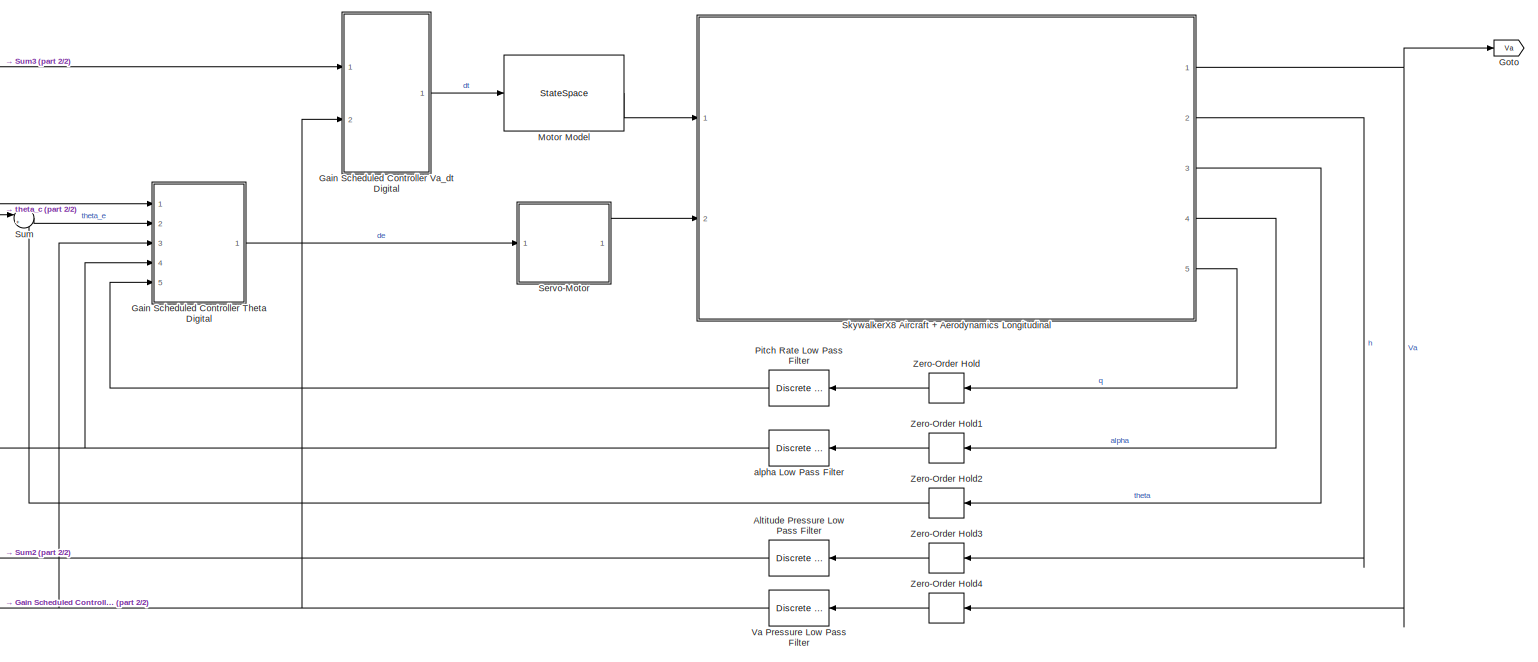
[diagram: root canvas - part 1/2, right side, full height]
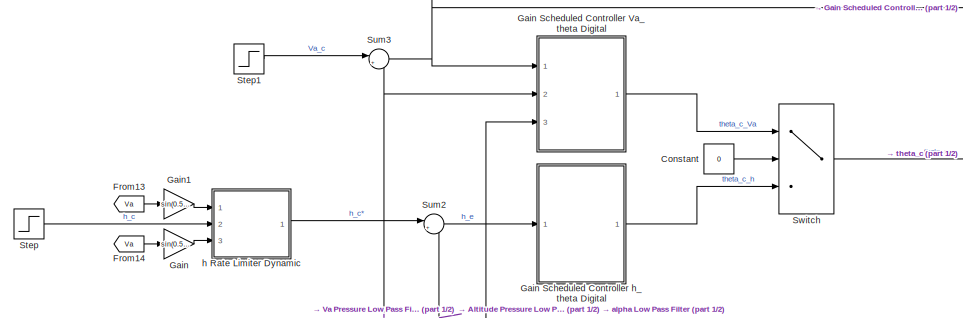
[diagram: root canvas - part 2/2, middle left region]
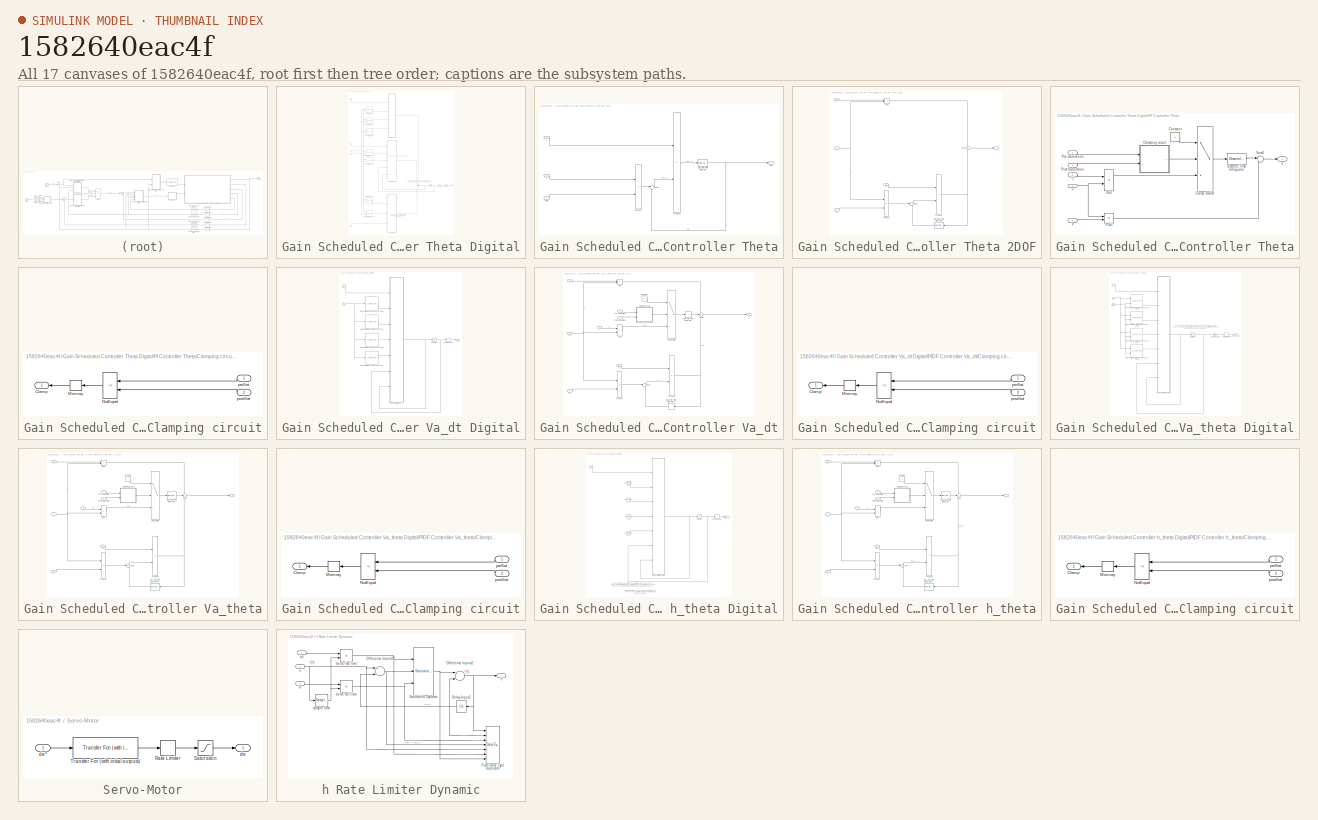
[diagram: thumbnail index - all 17 canvases of the model, root first then tree order]
MODEL slx_1582640eac4f
KIND model
CONFIG AbsTol = auto
CONFIG EnableMultiTasking = off
CONFIG FixedStep = auto
CONFIG MaxStep = auto
CONFIG MinStep = auto
CONFIG RelTol = 1e-3
CONFIG SampleTimeConstraint = Unconstrained
CONFIG Solver = FixedStepAuto
CONFIG SolverName = FixedStepAuto
CONFIG StartTime = 0.0
CONFIG StopTime = 10
BLOCK [Reference] Altitude Pressure Low Pass Filter  REF=simulink_extras/Additional
Discrete/Discrete
Transfer Fcn
(with initial outputs)
  Ports = [1, 1]
  SourceBlock = simulink_extras/Additional\nDiscrete/Discrete\nTransfer Fcn\n(with initial outputs)
  SourceProductBaseCode = SL
  SourceProductName = Simulink
  SourceType = Discrete Transfer Function with Initial Outputs
BLOCK [Constant] Constant
  OutDataTypeStr = boolean
  Value = 0
BLOCK [From] From13
  GotoTag = Va
BLOCK [From] From14
  GotoTag = Va
BLOCK [Gain] Gain
  Gain = sin(0.5*SkywalkerX8.Control.Longitudinal.altController.lowerSaturationThetaC)
  OutDataTypeStr = Inherit: Inherit via internal rule
  ParamDataTypeStr = Inherit: Inherit via internal rule
  SaturateOnIntegerOverflow = off
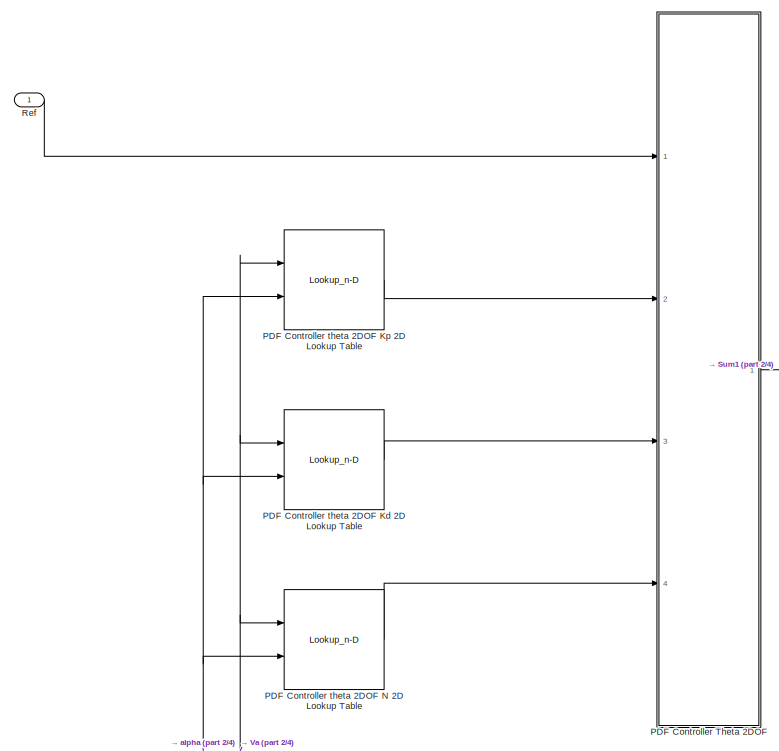
[diagram: Gain Scheduled Controller Theta Digital - part 1/4, top left region]
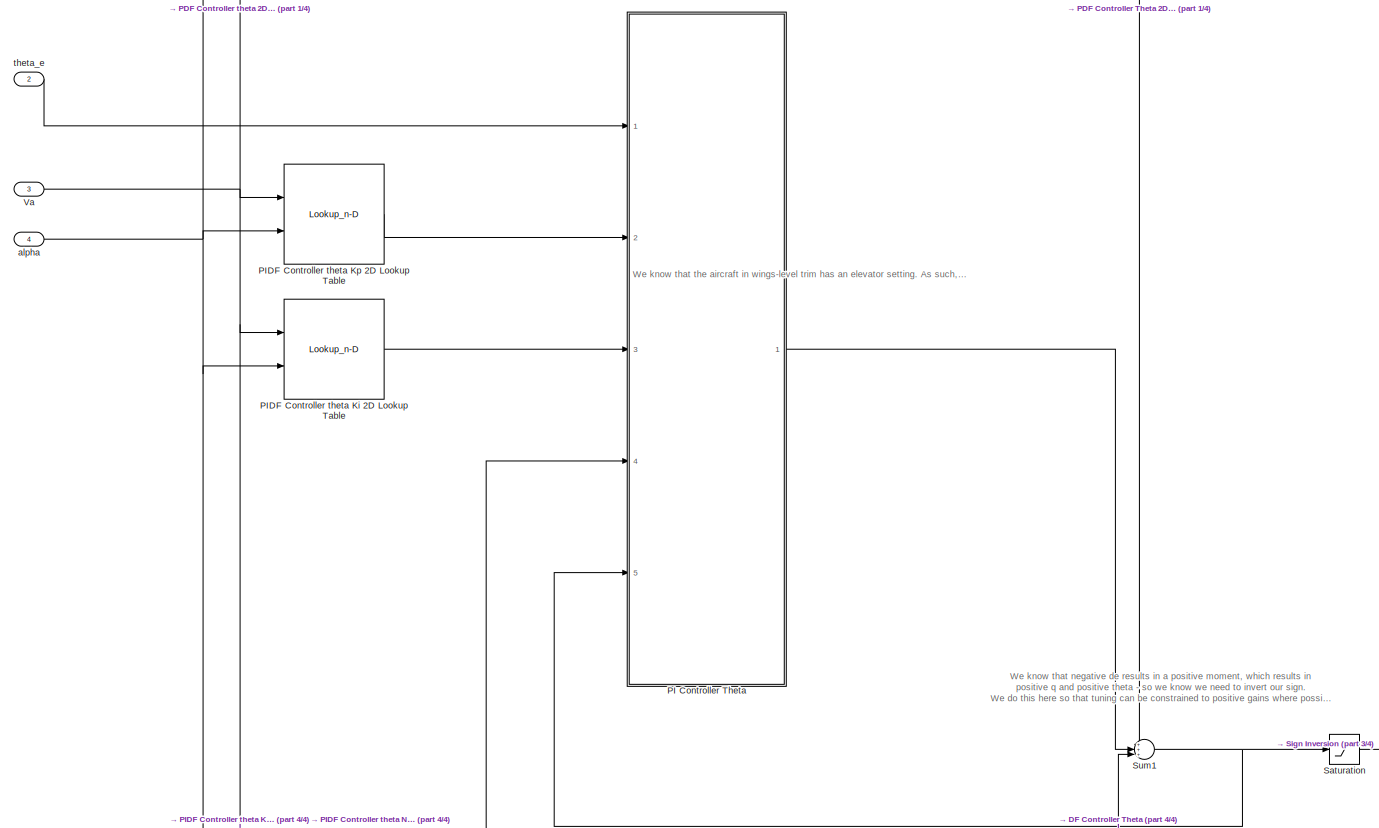
[diagram: Gain Scheduled Controller Theta Digital - part 2/4, full width, middle band]
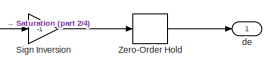
[diagram: Gain Scheduled Controller Theta Digital - part 3/4, middle right region]
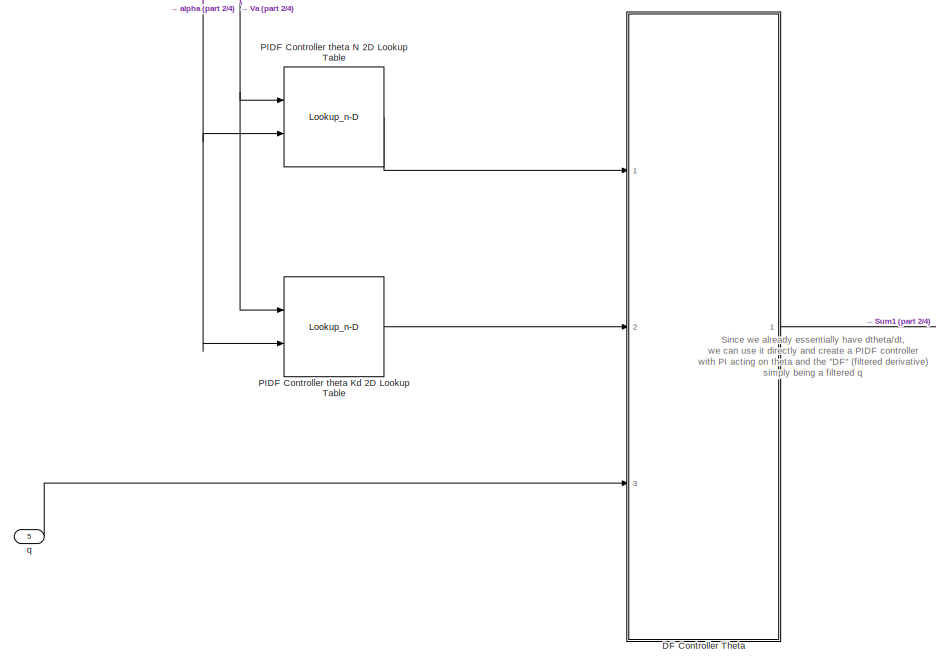
[diagram: Gain Scheduled Controller Theta Digital - part 4/4, bottom left region]
BLOCK [SubSystem] Gain Scheduled Controller Theta Digital
  Ports = [5, 1]
  RequestExecContextInheritance = off
BLOCK [SubSystem] Gain Scheduled Controller Theta Digital/DF Controller Theta
  Ports = [3, 1]
  RequestExecContextInheritance = off
BLOCK [Inport] Gain Scheduled Controller Theta Digital/DF Controller Theta/D
  IconDisplay = Port number
  Port = 2
BLOCK [DiscreteIntegrator] Gain Scheduled Controller Theta Digital/DF Controller Theta/Discrete-Time Integrator
  ICPrevOutput = DiscIntNeverNeededParam
  ICPrevScaledInput = DiscIntNeverNeededParam
  InitialConditionSetting = Auto
  IntegratorMethod = Integration: Trapezoidal
  Ports = [1, 1]
  SampleTime = SkywalkerX8.Control.Longitudinal.thetaController.Digital.SampleTime
BLOCK [Inport] Gain Scheduled Controller Theta Digital/DF Controller Theta/N
  IconDisplay = Port number
BLOCK [Product] Gain Scheduled Controller Theta Digital/DF Controller Theta/Product
  InputSameDT = off
  OutDataTypeStr = Inherit: Inherit via internal rule
  Ports = [2, 1]
  RndMeth = Floor
  SaturateOnIntegerOverflow = off
BLOCK [Product] Gain Scheduled Controller Theta Digital/DF Controller Theta/Product1
  InputSameDT = off
  OutDataTypeStr = Inherit: Inherit via internal rule
  Ports = [2, 1]
  RndMeth = Floor
  SaturateOnIntegerOverflow = off
BLOCK [Sum] Gain Scheduled Controller Theta Digital/DF Controller Theta/Sum
  IconShape = round
  InputSameDT = off
  Inputs = |+-
  OutDataTypeStr = Inherit: Inherit via internal rule
  Ports = [2, 1]
  SaturateOnIntegerOverflow = off
BLOCK [Outport] Gain Scheduled Controller Theta Digital/DF Controller Theta/de*
  IconDisplay = Port number
BLOCK [Inport] Gain Scheduled Controller Theta Digital/DF Controller Theta/du//dt
  IconDisplay = Port number
  Port = 3
BLOCK [SubSystem] Gain Scheduled Controller Theta Digital/PDF Controller Theta 2DOF
  Ports = [4, 1]
  RequestExecContextInheritance = off
BLOCK [Inport] Gain Scheduled Controller Theta Digital/PDF Controller Theta 2DOF/D
  IconDisplay = Port number
  Port = 3
BLOCK [DiscreteIntegrator] Gain Scheduled Controller Theta Digital/PDF Controller Theta 2DOF/Discrete-Time Integrator
  ICPrevOutput = DiscIntNeverNeededParam
  ICPrevScaledInput = DiscIntNeverNeededParam
  InitialConditionSetting = Auto
  Ports = [1, 1]
  SampleTime = SkywalkerX8.Control.Longitudinal.thetaController.Digital.SampleTime
BLOCK [Inport] Gain Scheduled Controller Theta Digital/PDF Controller Theta 2DOF/N
  IconDisplay = Port number
  Port = 4
BLOCK [Inport] Gain Scheduled Controller Theta Digital/PDF Controller Theta 2DOF/P
  IconDisplay = Port number
  Port = 2
BLOCK [Product] Gain Scheduled Controller Theta Digital/PDF Controller Theta 2DOF/POut
  InputSameDT = off
  OutDataTypeStr = Inherit: Inherit via internal rule
  Ports = [2, 1]
  RndMeth = Floor
  SaturateOnIntegerOverflow = off
BLOCK [Product] Gain Scheduled Controller Theta Digital/PDF Controller Theta 2DOF/Product
  InputSameDT = off
  OutDataTypeStr = Inherit: Inherit via internal rule
  Ports = [2, 1]
  RndMeth = Floor
  SaturateOnIntegerOverflow = off
BLOCK [Product] Gain Scheduled Controller Theta Digital/PDF Controller Theta 2DOF/Product1
  InputSameDT = off
  OutDataTypeStr = Inherit: Inherit via internal rule
  Ports = [2, 1]
  RndMeth = Floor
  SaturateOnIntegerOverflow = off
BLOCK [Sum] Gain Scheduled Controller Theta Digital/PDF Controller Theta 2DOF/Sum
  IconShape = round
  InputSameDT = off
  Inputs = |+-
  OutDataTypeStr = Inherit: Inherit via internal rule
  Ports = [2, 1]
  SaturateOnIntegerOverflow = off
BLOCK [Sum] Gain Scheduled Controller Theta Digital/PDF Controller Theta 2DOF/Sum2
  IconShape = round
  InputSameDT = off
  OutDataTypeStr = Inherit: Inherit via internal rule
  Ports = [2, 1]
  SaturateOnIntegerOverflow = off
BLOCK [Inport] Gain Scheduled Controller Theta Digital/PDF Controller Theta 2DOF/u
  IconDisplay = Port number
BLOCK [Outport] Gain Scheduled Controller Theta Digital/PDF Controller Theta 2DOF/y
  IconDisplay = Port number
  InitialOutput = 0
BLOCK [Lookup_n-D] Gain Scheduled Controller Theta Digital/PDF Controller theta 2DOF Kd 2D Lookup Table
  BreakpointsForDimension1 = SkywalkerX8.Control.Longitudinal.SchedulingVariables.VaArray
  BreakpointsForDimension2 = SkywalkerX8.Control.Longitudinal.SchedulingVariables.alphaArray
  InternalRulePriority = Speed
  Ports = [2, 1]
  RndMeth = Simplest
  Table = SkywalkerX8.Control.Longitudinal.thetaController.Digital.KdTheta2DOF
BLOCK [Lookup_n-D] Gain Scheduled Controller Theta Digital/PDF Controller theta 2DOF Kp 2D Lookup Table
  BreakpointsForDimension1 = SkywalkerX8.Control.Longitudinal.SchedulingVariables.VaArray
  BreakpointsForDimension2 = SkywalkerX8.Control.Longitudinal.SchedulingVariables.alphaArray
  InternalRulePriority = Speed
  Ports = [2, 1]
  RndMeth = Simplest
  Table = SkywalkerX8.Control.Longitudinal.thetaController.Digital.KpTheta2DOF
BLOCK [Lookup_n-D] Gain Scheduled Controller Theta Digital/PDF Controller theta 2DOF N 2D Lookup Table
  BreakpointsForDimension1 = SkywalkerX8.Control.Longitudinal.SchedulingVariables.VaArray
  BreakpointsForDimension2 = SkywalkerX8.Control.Longitudinal.SchedulingVariables.alphaArray
  InternalRulePriority = Speed
  Ports = [2, 1]
  RndMeth = Simplest
  Table = SkywalkerX8.Control.Longitudinal.thetaController.Digital.NTheta2DOF
BLOCK [SubSystem] Gain Scheduled Controller Theta Digital/PI Controller Theta
  Ports = [5, 1]
  RequestExecContextInheritance = off
BLOCK [Switch] Gain Scheduled Controller Theta Digital/PI Controller Theta/Clamp Switch
  Criteria = u2 ~= 0
  InputSameDT = off
  SaturateOnIntegerOverflow = off
BLOCK [SubSystem] Gain Scheduled Controller Theta Digital/PI Controller Theta/Clamping circuit
  Ports = [2, 1]
  RequestExecContextInheritance = off
BLOCK [Outport] Gain Scheduled Controller Theta Digital/PI Controller Theta/Clamping circuit/Clamp
  DisableCoverage = on
  IconDisplay = Port number
BLOCK [Memory] Gain Scheduled Controller Theta Digital/PI Controller Theta/Clamping circuit/Memory
  DisableCoverage = on
BLOCK [RelationalOperator] Gain Scheduled Controller Theta Digital/PI Controller Theta/Clamping circuit/NotEqual
  DisableCoverage = on
  Operator = ~=
  Ports = [2, 1]
BLOCK [Inport] Gain Scheduled Controller Theta Digital/PI Controller Theta/Clamping circuit/postSat
  DisableCoverage = on
  IconDisplay = Port number
  Port = 2
BLOCK [Inport] Gain Scheduled Controller Theta Digital/PI Controller Theta/Clamping circuit/preSat
  DisableCoverage = on
  IconDisplay = Port number
BLOCK [Constant] Gain Scheduled Controller Theta Digital/PI Controller Theta/Constant
  Value = 0
BLOCK [DiscreteIntegrator] Gain Scheduled Controller Theta Digital/PI Controller Theta/Discrete-Time Integrator
  ICPrevOutput = DiscIntNeverNeededParam
  ICPrevScaledInput = DiscIntNeverNeededParam
  InitialCondition = SkywalkerX8.InitialConditions.ThetaController.Integrator
  InitialConditionSetting = Auto
  IntegratorMethod = Integration: Trapezoidal
  Ports = [1, 1]
  SampleTime = SkywalkerX8.Control.Longitudinal.thetaController.Digital.SampleTime
BLOCK [Inport] Gain Scheduled Controller Theta Digital/PI Controller Theta/I
  IconDisplay = Port number
  Port = 3
BLOCK [Product] Gain Scheduled Controller Theta Digital/PI Controller Theta/IOut
  DisableCoverage = on
  InputSameDT = off
  OutDataTypeStr = Inherit: Inherit via internal rule
  Ports = [2, 1]
  RndMeth = Floor
  SaturateOnIntegerOverflow = off
BLOCK [Inport] Gain Scheduled Controller Theta Digital/PI Controller Theta/P
  IconDisplay = Port number
  Port = 2
BLOCK [Product] Gain Scheduled Controller Theta Digital/PI Controller Theta/POut
  InputSameDT = off
  OutDataTypeStr = Inherit: Inherit via internal rule
  Ports = [2, 1]
  RndMeth = Floor
  SaturateOnIntegerOverflow = off
BLOCK [Inport] Gain Scheduled Controller Theta Digital/PI Controller Theta/Post-Saturation
  IconDisplay = Port number
  Port = 4
BLOCK [Inport] Gain Scheduled Controller Theta Digital/PI Controller Theta/Pre-Saturation
  IconDisplay = Port number
  Port = 5
BLOCK [Sum] Gain Scheduled Controller Theta Digital/PI Controller Theta/Sum2
  IconShape = round
  InputSameDT = off
  Inputs = |++
  OutDataTypeStr = Inherit: Inherit via internal rule
  Ports = [2, 1]
  SaturateOnIntegerOverflow = off
BLOCK [Inport] Gain Scheduled Controller Theta Digital/PI Controller Theta/u
  IconDisplay = Port number
BLOCK [Outport] Gain Scheduled Controller Theta Digital/PI Controller Theta/y
  IconDisplay = Port number
  InitialOutput = 0
BLOCK [Lookup_n-D] Gain Scheduled Controller Theta Digital/PIDF Controller theta Kd 2D Lookup Table
  BreakpointsForDimension1 = SkywalkerX8.Control.Longitudinal.SchedulingVariables.VaArray
  BreakpointsForDimension2 = SkywalkerX8.Control.Longitudinal.SchedulingVariables.alphaArray
  InternalRulePriority = Speed
  Ports = [2, 1]
  RndMeth = Simplest
  Table = SkywalkerX8.Control.Longitudinal.thetaController.Digital.KdTheta
BLOCK [Lookup_n-D] Gain Scheduled Controller Theta Digital/PIDF Controller theta Ki 2D Lookup Table
  BreakpointsForDimension1 = SkywalkerX8.Control.Longitudinal.SchedulingVariables.VaArray
  BreakpointsForDimension2 = SkywalkerX8.Control.Longitudinal.SchedulingVariables.alphaArray
  InternalRulePriority = Speed
  Ports = [2, 1]
  RndMeth = Simplest
  Table = SkywalkerX8.Control.Longitudinal.thetaController.Digital.KiTheta
BLOCK [Lookup_n-D] Gain Scheduled Controller Theta Digital/PIDF Controller theta Kp 2D Lookup Table
  BreakpointsForDimension1 = SkywalkerX8.Control.Longitudinal.SchedulingVariables.VaArray
  BreakpointsForDimension2 = SkywalkerX8.Control.Longitudinal.SchedulingVariables.alphaArray
  InternalRulePriority = Speed
  Ports = [2, 1]
  RndMeth = Simplest
  Table = SkywalkerX8.Control.Longitudinal.thetaController.Digital.KpTheta
BLOCK [Lookup_n-D] Gain Scheduled Controller Theta Digital/PIDF Controller theta N 2D Lookup Table
  BreakpointsForDimension1 = SkywalkerX8.Control.Longitudinal.SchedulingVariables.VaArray
  BreakpointsForDimension2 = SkywalkerX8.Control.Longitudinal.SchedulingVariables.alphaArray
  InternalRulePriority = Speed
  Ports = [2, 1]
  RndMeth = Simplest
  Table = SkywalkerX8.Control.Longitudinal.thetaController.Digital.NTheta
BLOCK [Inport] Gain Scheduled Controller Theta Digital/Ref
  IconDisplay = Port number
BLOCK [Saturate] Gain Scheduled Controller Theta Digital/Saturation
  InputPortMap = u0
  LowerLimit = SkywalkerX8.Control.Longitudinal.thetaController.Digital.lowerSaturationNegativeDe
  Ports = [1, 1]
  UpperLimit = SkywalkerX8.Control.Longitudinal.thetaController.Digital.upperSaturationNegativeDe
BLOCK [Gain] Gain Scheduled Controller Theta Digital/Sign Inversion
  Gain = -1
  OutDataTypeStr = Inherit: Inherit via internal rule
  ParamDataTypeStr = Inherit: Inherit via internal rule
  SaturateOnIntegerOverflow = off
BLOCK [Sum] Gain Scheduled Controller Theta Digital/Sum1
  IconShape = round
  InputSameDT = off
  Inputs = +++|
  OutDataTypeStr = Inherit: Inherit via internal rule
  Ports = [3, 1]
  SaturateOnIntegerOverflow = off
BLOCK [Inport] Gain Scheduled Controller Theta Digital/Va
  IconDisplay = Port number
  Port = 3
BLOCK [ZeroOrderHold] Gain Scheduled Controller Theta Digital/Zero-Order Hold
  SampleTime = SkywalkerX8.Control.Longitudinal.thetaController.Digital.SampleTime
BLOCK [Inport] Gain Scheduled Controller Theta Digital/alpha
  IconDisplay = Port number
  Port = 4
BLOCK [Outport] Gain Scheduled Controller Theta Digital/de
  IconDisplay = Port number
BLOCK [Inport] Gain Scheduled Controller Theta Digital/q
  IconDisplay = Port number
  Port = 5
BLOCK [Inport] Gain Scheduled Controller Theta Digital/theta_e
  IconDisplay = Port number
  Port = 2
BLOCK [SubSystem] Gain Scheduled Controller Va_dt Digital
  Ports = [2, 1]
  RequestExecContextInheritance = off
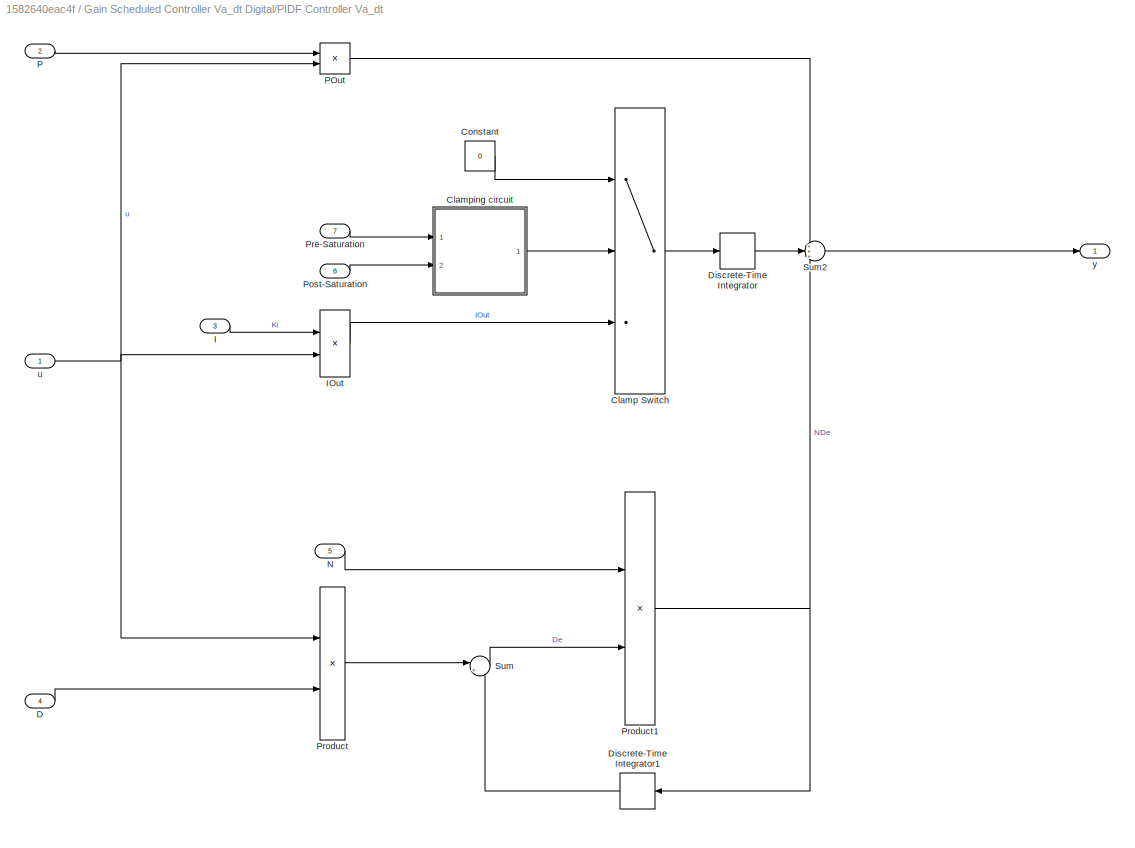
BLOCK [SubSystem] Gain Scheduled Controller Va_dt Digital/PIDF Controller Va_dt
  Ports = [7, 1]
  RequestExecContextInheritance = off
BLOCK [Lookup_n-D] Gain Scheduled Controller Va_dt Digital/PIDF Controller Va_dt Kd Lookup Table
  BreakpointsForDimension1 = SkywalkerX8.Control.Longitudinal.SchedulingVariables.VaArray
  BreakpointsForDimension2 = [1 2 3 4 5]
  InternalRulePriority = Speed
  NumberOfTableDimensions = 1
  Ports = [1, 1]
  RndMeth = Simplest
  Table = SkywalkerX8.Control.Longitudinal.VaDtController.Digital.KdVaDt
BLOCK [Lookup_n-D] Gain Scheduled Controller Va_dt Digital/PIDF Controller Va_dt Ki Lookup Table
  BreakpointsForDimension1 = SkywalkerX8.Control.Longitudinal.SchedulingVariables.VaArray
  BreakpointsForDimension2 = [1 2 3 4 5]
  InternalRulePriority = Speed
  NumberOfTableDimensions = 1
  Ports = [1, 1]
  RndMeth = Simplest
  Table = SkywalkerX8.Control.Longitudinal.VaDtController.Digital.KiVaDt
BLOCK [Lookup_n-D] Gain Scheduled Controller Va_dt Digital/PIDF Controller Va_dt Kp Lookup Table
  BreakpointsForDimension1 = SkywalkerX8.Control.Longitudinal.SchedulingVariables.VaArray
  BreakpointsForDimension2 = [1 2 3 4 5]
  InternalRulePriority = Speed
  NumberOfTableDimensions = 1
  Ports = [1, 1]
  RndMeth = Simplest
  Table = SkywalkerX8.Control.Longitudinal.VaDtController.Digital.KpVaDt
BLOCK [Lookup_n-D] Gain Scheduled Controller Va_dt Digital/PIDF Controller Va_dt N Lookup Table
  BreakpointsForDimension1 = SkywalkerX8.Control.Longitudinal.SchedulingVariables.VaArray
  BreakpointsForDimension2 = [1 2 3 4 5]
  InternalRulePriority = Speed
  NumberOfTableDimensions = 1
  Ports = [1, 1]
  RndMeth = Simplest
  Table = SkywalkerX8.Control.Longitudinal.VaDtController.Digital.NVaDt
BLOCK [Switch] Gain Scheduled Controller Va_dt Digital/PIDF Controller Va_dt/Clamp Switch
  Criteria = u2 ~= 0
  InputSameDT = off
  SaturateOnIntegerOverflow = off
BLOCK [SubSystem] Gain Scheduled Controller Va_dt Digital/PIDF Controller Va_dt/Clamping circuit
  Ports = [2, 1]
  RequestExecContextInheritance = off
BLOCK [Outport] Gain Scheduled Controller Va_dt Digital/PIDF Controller Va_dt/Clamping circuit/Clamp
  DisableCoverage = on
  IconDisplay = Port number
BLOCK [Memory] Gain Scheduled Controller Va_dt Digital/PIDF Controller Va_dt/Clamping circuit/Memory
  DisableCoverage = on
BLOCK [RelationalOperator] Gain Scheduled Controller Va_dt Digital/PIDF Controller Va_dt/Clamping circuit/NotEqual
  DisableCoverage = on
  Operator = ~=
  Ports = [2, 1]
BLOCK [Inport] Gain Scheduled Controller Va_dt Digital/PIDF Controller Va_dt/Clamping circuit/postSat
  DisableCoverage = on
  IconDisplay = Port number
  Port = 2
BLOCK [Inport] Gain Scheduled Controller Va_dt Digital/PIDF Controller Va_dt/Clamping circuit/preSat
  DisableCoverage = on
  IconDisplay = Port number
BLOCK [Constant] Gain Scheduled Controller Va_dt Digital/PIDF Controller Va_dt/Constant
  Value = 0
BLOCK [Inport] Gain Scheduled Controller Va_dt Digital/PIDF Controller Va_dt/D
  IconDisplay = Port number
  Port = 4
BLOCK [DiscreteIntegrator] Gain Scheduled Controller Va_dt Digital/PIDF Controller Va_dt/Discrete-Time Integrator
  ICPrevOutput = DiscIntNeverNeededParam
  ICPrevScaledInput = DiscIntNeverNeededParam
  InitialCondition = SkywalkerX8.InitialConditions.dt
  InitialConditionSetting = Auto
  IntegratorMethod = Integration: Trapezoidal
  Ports = [1, 1]
  SampleTime = SkywalkerX8.Control.Longitudinal.VaDtController.Digital.SampleTime
BLOCK [DiscreteIntegrator] Gain Scheduled Controller Va_dt Digital/PIDF Controller Va_dt/Discrete-Time Integrator1
  ICPrevOutput = DiscIntNeverNeededParam
  ICPrevScaledInput = DiscIntNeverNeededParam
  InitialConditionSetting = Auto
  Ports = [1, 1]
  SampleTime = SkywalkerX8.Control.Longitudinal.VaDtController.Digital.SampleTime
BLOCK [Inport] Gain Scheduled Controller Va_dt Digital/PIDF Controller Va_dt/I
  IconDisplay = Port number
  Port = 3
BLOCK [Product] Gain Scheduled Controller Va_dt Digital/PIDF Controller Va_dt/IOut
  DisableCoverage = on
  InputSameDT = off
  OutDataTypeStr = Inherit: Inherit via internal rule
  Ports = [2, 1]
  RndMeth = Floor
  SaturateOnIntegerOverflow = off
BLOCK [Inport] Gain Scheduled Controller Va_dt Digital/PIDF Controller Va_dt/N
  IconDisplay = Port number
  Port = 5
BLOCK [Inport] Gain Scheduled Controller Va_dt Digital/PIDF Controller Va_dt/P
  IconDisplay = Port number
  Port = 2
BLOCK [Product] Gain Scheduled Controller Va_dt Digital/PIDF Controller Va_dt/POut
  InputSameDT = off
  OutDataTypeStr = Inherit: Inherit via internal rule
  Ports = [2, 1]
  RndMeth = Floor
  SaturateOnIntegerOverflow = off
BLOCK [Inport] Gain Scheduled Controller Va_dt Digital/PIDF Controller Va_dt/Post-Saturation
  IconDisplay = Port number
  Port = 6
BLOCK [Inport] Gain Scheduled Controller Va_dt Digital/PIDF Controller Va_dt/Pre-Saturation
  IconDisplay = Port number
  Port = 7
BLOCK [Product] Gain Scheduled Controller Va_dt Digital/PIDF Controller Va_dt/Product
  InputSameDT = off
  OutDataTypeStr = Inherit: Inherit via internal rule
  Ports = [2, 1]
  RndMeth = Floor
  SaturateOnIntegerOverflow = off
BLOCK [Product] Gain Scheduled Controller Va_dt Digital/PIDF Controller Va_dt/Product1
  InputSameDT = off
  OutDataTypeStr = Inherit: Inherit via internal rule
  Ports = [2, 1]
  RndMeth = Floor
  SaturateOnIntegerOverflow = off
BLOCK [Sum] Gain Scheduled Controller Va_dt Digital/PIDF Controller Va_dt/Sum
  IconShape = round
  InputSameDT = off
  Inputs = |+-
  OutDataTypeStr = Inherit: Inherit via internal rule
  Ports = [2, 1]
  SaturateOnIntegerOverflow = off
BLOCK [Sum] Gain Scheduled Controller Va_dt Digital/PIDF Controller Va_dt/Sum2
  IconShape = round
  InputSameDT = off
  Inputs = +++
  OutDataTypeStr = Inherit: Inherit via internal rule
  Ports = [3, 1]
  SaturateOnIntegerOverflow = off
BLOCK [Inport] Gain Scheduled Controller Va_dt Digital/PIDF Controller Va_dt/u
  IconDisplay = Port number
BLOCK [Outport] Gain Scheduled Controller Va_dt Digital/PIDF Controller Va_dt/y
  IconDisplay = Port number
  InitialOutput = 0
BLOCK [Saturate] Gain Scheduled Controller Va_dt Digital/Saturation
  InputPortMap = u0
  LowerLimit = SkywalkerX8.Control.Longitudinal.VaDtController.lowerSaturationDt
  Ports = [1, 1]
  UpperLimit = SkywalkerX8.Control.Longitudinal.VaDtController.upperSaturationDt
BLOCK [Inport] Gain Scheduled Controller Va_dt Digital/Va
  IconDisplay = Port number
  Port = 2
BLOCK [Inport] Gain Scheduled Controller Va_dt Digital/Va_e
  IconDisplay = Port number
BLOCK [ZeroOrderHold] Gain Scheduled Controller Va_dt Digital/Zero-Order Hold
  SampleTime = SkywalkerX8.Control.Longitudinal.VaDtController.Digital.SampleTime
BLOCK [Outport] Gain Scheduled Controller Va_dt Digital/dt
  IconDisplay = Port number
BLOCK [SubSystem] Gain Scheduled Controller Va_theta Digital
  Ports = [3, 1]
  RequestExecContextInheritance = off
BLOCK [SubSystem] Gain Scheduled Controller Va_theta Digital/PIDF Controller Va_theta
  Ports = [7, 1]
  RequestExecContextInheritance = off
BLOCK [Lookup_n-D] Gain Scheduled Controller Va_theta Digital/PIDF Controller Va_theta Kd 2D Lookup Table
  BreakpointsForDimension1 = SkywalkerX8.Control.Longitudinal.SchedulingVariables.VaArray
  BreakpointsForDimension2 = SkywalkerX8.Control.Longitudinal.SchedulingVariables.alphaArray
  InternalRulePriority = Speed
  Ports = [2, 1]
  RndMeth = Simplest
  Table = SkywalkerX8.Control.Longitudinal.VaThetaController.Digital.KdVaTheta
BLOCK [Lookup_n-D] Gain Scheduled Controller Va_theta Digital/PIDF Controller Va_theta Ki 2D Lookup Table
  BreakpointsForDimension1 = SkywalkerX8.Control.Longitudinal.SchedulingVariables.VaArray
  BreakpointsForDimension2 = SkywalkerX8.Control.Longitudinal.SchedulingVariables.alphaArray
  InternalRulePriority = Speed
  Ports = [2, 1]
  RndMeth = Simplest
  Table = SkywalkerX8.Control.Longitudinal.VaThetaController.Digital.KiVaTheta
BLOCK [Lookup_n-D] Gain Scheduled Controller Va_theta Digital/PIDF Controller Va_theta Kp 2D Lookup Table
  BreakpointsForDimension1 = SkywalkerX8.Control.Longitudinal.SchedulingVariables.VaArray
  BreakpointsForDimension2 = SkywalkerX8.Control.Longitudinal.SchedulingVariables.alphaArray
  InternalRulePriority = Speed
  Ports = [2, 1]
  RndMeth = Simplest
  Table = SkywalkerX8.Control.Longitudinal.VaThetaController.Digital.KpVaTheta
BLOCK [Lookup_n-D] Gain Scheduled Controller Va_theta Digital/PIDF Controller Va_theta N 2D Lookup Table
  BreakpointsForDimension1 = SkywalkerX8.Control.Longitudinal.SchedulingVariables.VaArray
  BreakpointsForDimension2 = SkywalkerX8.Control.Longitudinal.SchedulingVariables.alphaArray
  InternalRulePriority = Speed
  Ports = [2, 1]
  RndMeth = Simplest
  Table = SkywalkerX8.Control.Longitudinal.VaThetaController.Digital.NVaTheta
BLOCK [Switch] Gain Scheduled Controller Va_theta Digital/PIDF Controller Va_theta/Clamp Switch
  Criteria = u2 ~= 0
  InputSameDT = off
  SaturateOnIntegerOverflow = off
BLOCK [SubSystem] Gain Scheduled Controller Va_theta Digital/PIDF Controller Va_theta/Clamping circuit
  Ports = [2, 1]
  RequestExecContextInheritance = off
BLOCK [Outport] Gain Scheduled Controller Va_theta Digital/PIDF Controller Va_theta/Clamping circuit/Clamp
  DisableCoverage = on
  IconDisplay = Port number
BLOCK [Memory] Gain Scheduled Controller Va_theta Digital/PIDF Controller Va_theta/Clamping circuit/Memory
  DisableCoverage = on
BLOCK [RelationalOperator] Gain Scheduled Controller Va_theta Digital/PIDF Controller Va_theta/Clamping circuit/NotEqual
  DisableCoverage = on
  Operator = ~=
  Ports = [2, 1]
BLOCK [Inport] Gain Scheduled Controller Va_theta Digital/PIDF Controller Va_theta/Clamping circuit/postSat
  DisableCoverage = on
  IconDisplay = Port number
  Port = 2
BLOCK [Inport] Gain Scheduled Controller Va_theta Digital/PIDF Controller Va_theta/Clamping circuit/preSat
  DisableCoverage = on
  IconDisplay = Port number
BLOCK [Constant] Gain Scheduled Controller Va_theta Digital/PIDF Controller Va_theta/Constant
  Value = 0
BLOCK [Inport] Gain Scheduled Controller Va_theta Digital/PIDF Controller Va_theta/D
  IconDisplay = Port number
  Port = 4
BLOCK [DiscreteIntegrator] Gain Scheduled Controller Va_theta Digital/PIDF Controller Va_theta/Discrete-Time Integrator
  ICPrevOutput = DiscIntNeverNeededParam
  ICPrevScaledInput = DiscIntNeverNeededParam
  InitialCondition = -SkywalkerX8.InitialConditions.PhiThetaPsi(2)
  InitialConditionSetting = Auto
  IntegratorMethod = Integration: Trapezoidal
  Ports = [1, 1]
  SampleTime = SkywalkerX8.Control.Longitudinal.VaThetaController.Digital.SampleTime
BLOCK [DiscreteIntegrator] Gain Scheduled Controller Va_theta Digital/PIDF Controller Va_theta/Discrete-Time Integrator1
  ICPrevOutput = DiscIntNeverNeededParam
  ICPrevScaledInput = DiscIntNeverNeededParam
  InitialConditionSetting = Auto
  Ports = [1, 1]
  SampleTime = SkywalkerX8.Control.Longitudinal.VaThetaController.Digital.SampleTime
BLOCK [Inport] Gain Scheduled Controller Va_theta Digital/PIDF Controller Va_theta/I
  IconDisplay = Port number
  Port = 3
BLOCK [Product] Gain Scheduled Controller Va_theta Digital/PIDF Controller Va_theta/IOut
  DisableCoverage = on
  InputSameDT = off
  OutDataTypeStr = Inherit: Inherit via internal rule
  Ports = [2, 1]
  RndMeth = Floor
  SaturateOnIntegerOverflow = off
BLOCK [Inport] Gain Scheduled Controller Va_theta Digital/PIDF Controller Va_theta/N
  IconDisplay = Port number
  Port = 5
BLOCK [Inport] Gain Scheduled Controller Va_theta Digital/PIDF Controller Va_theta/P
  IconDisplay = Port number
  Port = 2
BLOCK [Product] Gain Scheduled Controller Va_theta Digital/PIDF Controller Va_theta/POut
  InputSameDT = off
  OutDataTypeStr = Inherit: Inherit via internal rule
  Ports = [2, 1]
  RndMeth = Floor
  SaturateOnIntegerOverflow = off
BLOCK [Inport] Gain Scheduled Controller Va_theta Digital/PIDF Controller Va_theta/Post-Saturation
  IconDisplay = Port number
  Port = 6
BLOCK [Inport] Gain Scheduled Controller Va_theta Digital/PIDF Controller Va_theta/Pre-Saturation
  IconDisplay = Port number
  Port = 7
BLOCK [Product] Gain Scheduled Controller Va_theta Digital/PIDF Controller Va_theta/Product
  InputSameDT = off
  OutDataTypeStr = Inherit: Inherit via internal rule
  Ports = [2, 1]
  RndMeth = Floor
  SaturateOnIntegerOverflow = off
BLOCK [Product] Gain Scheduled Controller Va_theta Digital/PIDF Controller Va_theta/Product1
  InputSameDT = off
  OutDataTypeStr = Inherit: Inherit via internal rule
  Ports = [2, 1]
  RndMeth = Floor
  SaturateOnIntegerOverflow = off
BLOCK [Sum] Gain Scheduled Controller Va_theta Digital/PIDF Controller Va_theta/Sum
  IconShape = round
  InputSameDT = off
  Inputs = |+-
  OutDataTypeStr = Inherit: Inherit via internal rule
  Ports = [2, 1]
  SaturateOnIntegerOverflow = off
BLOCK [Sum] Gain Scheduled Controller Va_theta Digital/PIDF Controller Va_theta/Sum2
  IconShape = round
  InputSameDT = off
  Inputs = +++
  OutDataTypeStr = Inherit: Inherit via internal rule
  Ports = [3, 1]
  SaturateOnIntegerOverflow = off
BLOCK [Inport] Gain Scheduled Controller Va_theta Digital/PIDF Controller Va_theta/u
  IconDisplay = Port number
BLOCK [Outport] Gain Scheduled Controller Va_theta Digital/PIDF Controller Va_theta/y
  IconDisplay = Port number
  InitialOutput = 0
BLOCK [Saturate] Gain Scheduled Controller Va_theta Digital/Saturation
  InputPortMap = u0
  LowerLimit = SkywalkerX8.Control.Longitudinal.VaThetaController.Digital.lowerSaturationThetaC
  Ports = [1, 1]
  UpperLimit = SkywalkerX8.Control.Longitudinal.VaThetaController.Digital.upperSaturationThetaC
BLOCK [Gain] Gain Scheduled Controller Va_theta Digital/Sign Inversion
  Gain = -1
  OutDataTypeStr = Inherit: Inherit via internal rule
  ParamDataTypeStr = Inherit: Inherit via internal rule
  SaturateOnIntegerOverflow = off
BLOCK [Inport] Gain Scheduled Controller Va_theta Digital/Va
  IconDisplay = Port number
  Port = 2
BLOCK [Inport] Gain Scheduled Controller Va_theta Digital/Va_e
  IconDisplay = Port number
BLOCK [ZeroOrderHold] Gain Scheduled Controller Va_theta Digital/Zero-Order Hold
  SampleTime = SkywalkerX8.Control.Longitudinal.altController.Digital.SampleTime
BLOCK [Inport] Gain Scheduled Controller Va_theta Digital/alpha
  IconDisplay = Port number
  Port = 3
BLOCK [Outport] Gain Scheduled Controller Va_theta Digital/theta_c_Va
  IconDisplay = Port number
BLOCK [SubSystem] Gain Scheduled Controller h_theta Digital
  Ports = [1, 1]
  RequestExecContextInheritance = off
BLOCK [Constant] Gain Scheduled Controller h_theta Digital/Kd
  Value = SkywalkerX8.Control.Longitudinal.altController.Digital.KdAlt(5, 3)
BLOCK [Constant] Gain Scheduled Controller h_theta Digital/Ki
  Value = SkywalkerX8.Control.Longitudinal.altController.Digital.KiAlt(5, 3)
BLOCK [Constant] Gain Scheduled Controller h_theta Digital/Kp
  Value = SkywalkerX8.Control.Longitudinal.altController.Digital.KpAlt(5, 3)
BLOCK [Constant] Gain Scheduled Controller h_theta Digital/N
  Value = SkywalkerX8.Control.Longitudinal.altController.Digital.NAlt(5, 3)
BLOCK [SubSystem] Gain Scheduled Controller h_theta Digital/PIDF Controller h_theta
  Ports = [7, 1]
  RequestExecContextInheritance = off
BLOCK [Switch] Gain Scheduled Controller h_theta Digital/PIDF Controller h_theta/Clamp Switch
  Criteria = u2 ~= 0
  InputSameDT = off
  SaturateOnIntegerOverflow = off
BLOCK [SubSystem] Gain Scheduled Controller h_theta Digital/PIDF Controller h_theta/Clamping circuit
  Ports = [2, 1]
  RequestExecContextInheritance = off
BLOCK [Outport] Gain Scheduled Controller h_theta Digital/PIDF Controller h_theta/Clamping circuit/Clamp
  DisableCoverage = on
  IconDisplay = Port number
BLOCK [Memory] Gain Scheduled Controller h_theta Digital/PIDF Controller h_theta/Clamping circuit/Memory
  DisableCoverage = on
BLOCK [RelationalOperator] Gain Scheduled Controller h_theta Digital/PIDF Controller h_theta/Clamping circuit/NotEqual
  DisableCoverage = on
  Operator = ~=
  Ports = [2, 1]
BLOCK [Inport] Gain Scheduled Controller h_theta Digital/PIDF Controller h_theta/Clamping circuit/postSat
  DisableCoverage = on
  IconDisplay = Port number
  Port = 2
BLOCK [Inport] Gain Scheduled Controller h_theta Digital/PIDF Controller h_theta/Clamping circuit/preSat
  DisableCoverage = on
  IconDisplay = Port number
BLOCK [Constant] Gain Scheduled Controller h_theta Digital/PIDF Controller h_theta/Constant
  Value = 0
BLOCK [Inport] Gain Scheduled Controller h_theta Digital/PIDF Controller h_theta/D
  IconDisplay = Port number
  Port = 4
BLOCK [DiscreteIntegrator] Gain Scheduled Controller h_theta Digital/PIDF Controller h_theta/Discrete-Time Integrator
  ICPrevOutput = DiscIntNeverNeededParam
  ICPrevScaledInput = DiscIntNeverNeededParam
  InitialCondition = SkywalkerX8.InitialConditions.PhiThetaPsi(2)
  InitialConditionSetting = Auto
  IntegratorMethod = Integration: Trapezoidal
  Ports = [1, 1]
  SampleTime = SkywalkerX8.Control.Longitudinal.altController.Digital.SampleTime
BLOCK [DiscreteIntegrator] Gain Scheduled Controller h_theta Digital/PIDF Controller h_theta/Discrete-Time Integrator1
  ICPrevOutput = DiscIntNeverNeededParam
  ICPrevScaledInput = DiscIntNeverNeededParam
  InitialConditionSetting = Auto
  Ports = [1, 1]
  SampleTime = SkywalkerX8.Control.Longitudinal.altController.Digital.SampleTime
BLOCK [Inport] Gain Scheduled Controller h_theta Digital/PIDF Controller h_theta/I
  IconDisplay = Port number
  Port = 3
BLOCK [Product] Gain Scheduled Controller h_theta Digital/PIDF Controller h_theta/IOut
  DisableCoverage = on
  InputSameDT = off
  OutDataTypeStr = Inherit: Inherit via internal rule
  Ports = [2, 1]
  RndMeth = Floor
  SaturateOnIntegerOverflow = off
BLOCK [Inport] Gain Scheduled Controller h_theta Digital/PIDF Controller h_theta/N
  IconDisplay = Port number
  Port = 5
BLOCK [Inport] Gain Scheduled Controller h_theta Digital/PIDF Controller h_theta/P
  IconDisplay = Port number
  Port = 2
BLOCK [Product] Gain Scheduled Controller h_theta Digital/PIDF Controller h_theta/POut
  InputSameDT = off
  OutDataTypeStr = Inherit: Inherit via internal rule
  Ports = [2, 1]
  RndMeth = Floor
  SaturateOnIntegerOverflow = off
BLOCK [Inport] Gain Scheduled Controller h_theta Digital/PIDF Controller h_theta/Post-Saturation
  IconDisplay = Port number
  Port = 6
BLOCK [Inport] Gain Scheduled Controller h_theta Digital/PIDF Controller h_theta/Pre-Saturation
  IconDisplay = Port number
  Port = 7
BLOCK [Product] Gain Scheduled Controller h_theta Digital/PIDF Controller h_theta/Product
  InputSameDT = off
  OutDataTypeStr = Inherit: Inherit via internal rule
  Ports = [2, 1]
  RndMeth = Floor
  SaturateOnIntegerOverflow = off
BLOCK [Product] Gain Scheduled Controller h_theta Digital/PIDF Controller h_theta/Product1
  InputSameDT = off
  OutDataTypeStr = Inherit: Inherit via internal rule
  Ports = [2, 1]
  RndMeth = Floor
  SaturateOnIntegerOverflow = off
BLOCK [Sum] Gain Scheduled Controller h_theta Digital/PIDF Controller h_theta/Sum
  IconShape = round
  InputSameDT = off
  Inputs = |+-
  OutDataTypeStr = Inherit: Inherit via internal rule
  Ports = [2, 1]
  SaturateOnIntegerOverflow = off
BLOCK [Sum] Gain Scheduled Controller h_theta Digital/PIDF Controller h_theta/Sum2
  IconShape = round
  InputSameDT = off
  Inputs = +++
  OutDataTypeStr = Inherit: Inherit via internal rule
  Ports = [3, 1]
  SaturateOnIntegerOverflow = off
BLOCK [Inport] Gain Scheduled Controller h_theta Digital/PIDF Controller h_theta/u
  IconDisplay = Port number
BLOCK [Outport] Gain Scheduled Controller h_theta Digital/PIDF Controller h_theta/y
  IconDisplay = Port number
  InitialOutput = 0
BLOCK [Saturate] Gain Scheduled Controller h_theta Digital/Saturation
  InputPortMap = u0
  LowerLimit = SkywalkerX8.Control.Longitudinal.altController.Digital.lowerSaturationThetaC
  Ports = [1, 1]
  UpperLimit = SkywalkerX8.Control.Longitudinal.altController.Digital.upperSaturationThetaC
BLOCK [ZeroOrderHold] Gain Scheduled Controller h_theta Digital/Zero-Order Hold
  SampleTime = SkywalkerX8.Control.Longitudinal.altController.Digital.SampleTime
BLOCK [Inport] Gain Scheduled Controller h_theta Digital/h_e
  IconDisplay = Port number
BLOCK [Outport] Gain Scheduled Controller h_theta Digital/theta_c_h
  IconDisplay = Port number
BLOCK [Gain] Gain1
  Gain = sin(0.5*SkywalkerX8.Control.Longitudinal.altController.upperSaturationThetaC)
  OutDataTypeStr = Inherit: Inherit via internal rule
  ParamDataTypeStr = Inherit: Inherit via internal rule
  SaturateOnIntegerOverflow = off
BLOCK [Goto] Goto
  GotoTag = Va
BLOCK [StateSpace] Motor Model
  A = SkywalkerX8.Actuators.Motor.SS.A
  B = SkywalkerX8.Actuators.Motor.SS.B
  C = SkywalkerX8.Actuators.Motor.SS.C
  D = SkywalkerX8.Actuators.Motor.SS.D
  InitialCondition = SkywalkerX8.InitialConditions.dt/SkywalkerX8.Actuators.Motor.SS.C
  Ports = [1, 1]
BLOCK [Reference] Pitch Rate Low Pass Filter  REF=simulink_extras/Additional
Discrete/Discrete
Transfer Fcn
(with initial outputs)
  Ports = [1, 1]
  SourceBlock = simulink_extras/Additional\nDiscrete/Discrete\nTransfer Fcn\n(with initial outputs)
  SourceProductBaseCode = SL
  SourceProductName = Simulink
  SourceType = Discrete Transfer Function with Initial Outputs
BLOCK [SubSystem] Servo-Motor
  Ports = [1, 1]
  RequestExecContextInheritance = off
BLOCK [RateLimiter] Servo-Motor/Rate Limiter
  FallingSlewLimit = -SkywalkerX8.Actuators.Servos.RateLimit
  InitialCondition = SkywalkerX8.InitialConditions.de
  RisingSlewLimit = SkywalkerX8.Actuators.Servos.RateLimit
  SampleTimeMode = inherited
BLOCK [Saturate] Servo-Motor/Saturation
  InputPortMap = u0
  LowerLimit = 2*SkywalkerX8.Actuators.Servos.LowerSaturation
  Ports = [1, 1]
  UpperLimit = 2*SkywalkerX8.Actuators.Servos.UpperSaturation
BLOCK [Reference] Servo-Motor/Transfer Fcn (with initial outputs)  REF=simulink_extras/Additional
Linear/Transfer Fcn
(with initial outputs)
  Ports = [1, 1]
  SourceBlock = simulink_extras/Additional\nLinear/Transfer Fcn\n(with initial outputs)
  SourceProductBaseCode = SL
  SourceProductName = Simulink
  SourceType = Transfer Function with Initial Outputs
BLOCK [Outport] Servo-Motor/de
  IconDisplay = Port number
BLOCK [Inport] Servo-Motor/de*
  IconDisplay = Port number
BLOCK [ModelReference] SkywalkerX8 Aircraft + Aerodynamics Longitudinal
  ModelNameDialog = SkywalkerX8_Longitudinal
  ModelReferenceVersion = 1.65
  Ports = [2, 5]
BLOCK [Step] Step
  After = -SkywalkerX8.InitialConditions.XeYeZe(3)
  Before = -SkywalkerX8.InitialConditions.XeYeZe(3)
  SampleTime = 0
  Time = 0.1
BLOCK [Step] Step1
  After = 1.25*sqrt(SkywalkerX8.InitialConditions.uvw*SkywalkerX8.InitialConditions.uvw')
  Before = sqrt(SkywalkerX8.InitialConditions.uvw*SkywalkerX8.InitialConditions.uvw')
  SampleTime = 0
  Time = 5
BLOCK [Sum] Sum
  IconShape = round
  InputSameDT = off
  Inputs = |+-
  OutDataTypeStr = Inherit: Inherit via internal rule
  Ports = [2, 1]
  SaturateOnIntegerOverflow = off
BLOCK [Sum] Sum2
  IconShape = round
  InputSameDT = off
  Inputs = |+-
  OutDataTypeStr = Inherit: Inherit via internal rule
  Ports = [2, 1]
  SaturateOnIntegerOverflow = off
BLOCK [Sum] Sum3
  IconShape = round
  InputSameDT = off
  Inputs = |+-
  OutDataTypeStr = Inherit: Inherit via internal rule
  Ports = [2, 1]
  SaturateOnIntegerOverflow = off
BLOCK [Switch] Switch
  Criteria = u2 ~= 0
  InputSameDT = off
  SaturateOnIntegerOverflow = off
BLOCK [Reference] Va Pressure Low Pass Filter  REF=simulink_extras/Additional
Discrete/Discrete
Transfer Fcn
(with initial outputs)
  Ports = [1, 1]
  SourceBlock = simulink_extras/Additional\nDiscrete/Discrete\nTransfer Fcn\n(with initial outputs)
  SourceProductBaseCode = SL
  SourceProductName = Simulink
  SourceType = Discrete Transfer Function with Initial Outputs
BLOCK [ZeroOrderHold] Zero-Order Hold
  SampleTime = SkywalkerX8.Sensors.IMU.Gyroscope.SampleTime
BLOCK [ZeroOrderHold] Zero-Order Hold1
  SampleTime = SkywalkerX8.Sensors.AoA.SampleTime
BLOCK [ZeroOrderHold] Zero-Order Hold2
  SampleTime = SkywalkerX8.Sensors.EKF.GPSSmoothing.StateTransitionSampleTime
BLOCK [ZeroOrderHold] Zero-Order Hold3
  SampleTime = SkywalkerX8.Sensors.AltitudePressure.SampleTime
BLOCK [ZeroOrderHold] Zero-Order Hold4
  SampleTime = SkywalkerX8.Sensors.AirspeedPressure.SampleTime
BLOCK [Reference] alpha Low Pass Filter  REF=simulink_extras/Additional
Discrete/Discrete
Transfer Fcn
(with initial outputs)
  Ports = [1, 1]
  SourceBlock = simulink_extras/Additional\nDiscrete/Discrete\nTransfer Fcn\n(with initial outputs)
  SourceProductBaseCode = SL
  SourceProductName = Simulink
  SourceType = Discrete Transfer Function with Initial Outputs
BLOCK [SubSystem] h Rate Limiter Dynamic
  Ports = [3, 1]
  RequestExecContextInheritance = off
BLOCK [UnitDelay] h Rate Limiter Dynamic/Delay Input2
  Description = Store in Global RAM
  DisableCoverage = on
  InitialCondition = initOutput
  SampleTime = -1
BLOCK [Sum] h Rate Limiter Dynamic/Difference Inputs1
  Description = Add in CPU
  DisableCoverage = on
  InputSameDT = off
  Inputs = +-
  OutDataTypeStr = Inherit: Inherit via back propagation
  Ports = [2, 1]
  SaturateOnIntegerOverflow = off
BLOCK [Sum] h Rate Limiter Dynamic/Difference Inputs2
  Description = Add in CPU
  InputSameDT = off
  OutDataTypeStr = Inherit: Inherit via back propagation
  Ports = [2, 1]
  SaturateOnIntegerOverflow = off
BLOCK [DataTypeDuplicate] h Rate Limiter Dynamic/FixPt Data Type Duplicate
  DisableCoverage = on
  NumInputPorts = 7
  Ports = [7]
BLOCK [Reference] h Rate Limiter Dynamic/Saturation Dynamic  REF=simulink/Discontinuities/Saturation
Dynamic
  Ports = [3, 1]
  SourceBlock = simulink/Discontinuities/Saturation\nDynamic
  SourceProductBaseCode = SL
  SourceProductName = Simulink
  SourceType = Saturation Dynamic
BLOCK [Outport] h Rate Limiter Dynamic/Y
  IconDisplay = Port number
  InitialOutput = 0
BLOCK [Product] h Rate Limiter Dynamic/delta fall limit
  DisableCoverage = on
  InputSameDT = off
  Inputs = **
  OutDataTypeStr = Inherit: Inherit via back propagation
  Ports = [2, 1]
  RndMeth = Floor
BLOCK [Product] h Rate Limiter Dynamic/delta rise limit
  DisableCoverage = on
  InputSameDT = off
  Inputs = **
  OutDataTypeStr = Inherit: Inherit via back propagation
  Ports = [2, 1]
  RndMeth = Floor
BLOCK [Inport] h Rate Limiter Dynamic/lo
  IconDisplay = Port number
  Port = 3
BLOCK [SampleTimeMath] h Rate Limiter Dynamic/sample time
  DisableCoverage = on
  TsampMathOp = Ts Only
  weightValue = 1
BLOCK [Inport] h Rate Limiter Dynamic/u
  IconDisplay = Port number
  Port = 2
BLOCK [Inport] h Rate Limiter Dynamic/up
  IconDisplay = Port number
ANNOTATION Gain Scheduled Controller Theta Digital: Since we already essentially have dtheta/dt, we can use it directly and create a PIDF controller with PI acting on theta and the "DF" (filtered derivative) simply being a filtered q
ANNOTATION Gain Scheduled Controller Theta Digital: We know that negative de results in a positive moment, which results in positive q and positive theta - so we know we need to invert our sign. We do this here so that tuning can be constrained to positive gains where possible.
ANNOTATION Gain Scheduled Controller Theta Digital: We know that the aircraft in wings-level trim has an elevator setting. As such, we know that we require an integrator in the theta loop to hold this elevator setting state in trim in order to minimize actuator power requirements.
ANNOTATION Gain Scheduled Controller Va_theta Digital: We know that negative theta results in positive Va (as we'll start losing altitude) and vice versa as we gain altitude. In order to keep our controller gains positive we do the sign inversion seperately.
ANNOTATION Gain Scheduled Controller h_theta Digital: We know that wings-level trim has the aircraft with a pitch angle. As such, we know that at a minimum this controller has to be a PI controller, because otherwise we have no state to hold the required steady state theta command.
ANNOTATION Gain Scheduled Controller h_theta Digital: While this is true - it tunes to 0 anyway so we just remove it and accept some drift at the start of a simulation if we start from a non-0 position
ANNOTATION h Rate Limiter Dynamic: U(k)
ANNOTATION h Rate Limiter Dynamic: Y(k)
LINE Altitude Pressure Low Pass Filter:1 -> Sum2:2
LINE Constant:1 -> Switch:2
LINE From13:1 -> Gain1:1
LINE From14:1 -> Gain:1
LINE Gain Scheduled Controller Theta Digital/DF Controller Theta/D:1 -> Gain Scheduled Controller Theta Digital/DF Controller Theta/Product:1
NET Gain Scheduled Controller Theta Digital/DF Controller Theta/Discrete-Time Integrator:1 -> Gain Scheduled Controller Theta Digital/DF Controller Theta/Sum:2, Gain Scheduled Controller Theta Digital/DF Controller Theta/de*:1
LINE Gain Scheduled Controller Theta Digital/DF Controller Theta/N:1 -> Gain Scheduled Controller Theta Digital/DF Controller Theta/Product1:1
LINE Gain Scheduled Controller Theta Digital/DF Controller Theta/Product1:1 -> Gain Scheduled Controller Theta Digital/DF Controller Theta/Discrete-Time Integrator:1
LINE Gain Scheduled Controller Theta Digital/DF Controller Theta/Product:1 -> Gain Scheduled Controller Theta Digital/DF Controller Theta/Sum:1
LINE Gain Scheduled Controller Theta Digital/DF Controller Theta/Sum:1 -> Gain Scheduled Controller Theta Digital/DF Controller Theta/Product1:2
LINE Gain Scheduled Controller Theta Digital/DF Controller Theta/du//dt:1 -> Gain Scheduled Controller Theta Digital/DF Controller Theta/Product:2
LINE Gain Scheduled Controller Theta Digital/DF Controller Theta:1 -> Gain Scheduled Controller Theta Digital/Sum1:3
LINE Gain Scheduled Controller Theta Digital/PDF Controller Theta 2DOF/D:1 -> Gain Scheduled Controller Theta Digital/PDF Controller Theta 2DOF/Product:2
LINE Gain Scheduled Controller Theta Digital/PDF Controller Theta 2DOF/Discrete-Time Integrator:1 -> Gain Scheduled Controller Theta Digital/PDF Controller Theta 2DOF/Sum:2
LINE Gain Scheduled Controller Theta Digital/PDF Controller Theta 2DOF/N:1 -> Gain Scheduled Controller Theta Digital/PDF Controller Theta 2DOF/Product1:1
LINE Gain Scheduled Controller Theta Digital/PDF Controller Theta 2DOF/P:1 -> Gain Scheduled Controller Theta Digital/PDF Controller Theta 2DOF/POut:1
LINE Gain Scheduled Controller Theta Digital/PDF Controller Theta 2DOF/POut:1 -> Gain Scheduled Controller Theta Digital/PDF Controller Theta 2DOF/Sum2:1
NET Gain Scheduled Controller Theta Digital/PDF Controller Theta 2DOF/Product1:1 -> Gain Scheduled Controller Theta Digital/PDF Controller Theta 2DOF/Discrete-Time Integrator:1, Gain Scheduled Controller Theta Digital/PDF Controller Theta 2DOF/Sum2:2
LINE Gain Scheduled Controller Theta Digital/PDF Controller Theta 2DOF/Product:1 -> Gain Scheduled Controller Theta Digital/PDF Controller Theta 2DOF/Sum:1
LINE Gain Scheduled Controller Theta Digital/PDF Controller Theta 2DOF/Sum2:1 -> Gain Scheduled Controller Theta Digital/PDF Controller Theta 2DOF/y:1
LINE Gain Scheduled Controller Theta Digital/PDF Controller Theta 2DOF/Sum:1 -> Gain Scheduled Controller Theta Digital/PDF Controller Theta 2DOF/Product1:2
NET Gain Scheduled Controller Theta Digital/PDF Controller Theta 2DOF/u:1 -> Gain Scheduled Controller Theta Digital/PDF Controller Theta 2DOF/POut:2, Gain Scheduled Controller Theta Digital/PDF Controller Theta 2DOF/Product:1
LINE Gain Scheduled Controller Theta Digital/PDF Controller Theta 2DOF:1 -> Gain Scheduled Controller Theta Digital/Sum1:1
LINE Gain Scheduled Controller Theta Digital/PDF Controller theta 2DOF Kd 2D Lookup Table:1 -> Gain Scheduled Controller Theta Digital/PDF Controller Theta 2DOF:3
LINE Gain Scheduled Controller Theta Digital/PDF Controller theta 2DOF Kp 2D Lookup Table:1 -> Gain Scheduled Controller Theta Digital/PDF Controller Theta 2DOF:2
LINE Gain Scheduled Controller Theta Digital/PDF Controller theta 2DOF N 2D Lookup Table:1 -> Gain Scheduled Controller Theta Digital/PDF Controller Theta 2DOF:4
LINE Gain Scheduled Controller Theta Digital/PI Controller Theta/Clamp Switch:1 -> Gain Scheduled Controller Theta Digital/PI Controller Theta/Discrete-Time Integrator:1
LINE Gain Scheduled Controller Theta Digital/PI Controller Theta/Clamping circuit/Memory:1 -> Gain Scheduled Controller Theta Digital/PI Controller Theta/Clamping circuit/Clamp:1
LINE Gain Scheduled Controller Theta Digital/PI Controller Theta/Clamping circuit/NotEqual:1 -> Gain Scheduled Controller Theta Digital/PI Controller Theta/Clamping circuit/Memory:1
LINE Gain Scheduled Controller Theta Digital/PI Controller Theta/Clamping circuit/postSat:1 -> Gain Scheduled Controller Theta Digital/PI Controller Theta/Clamping circuit/NotEqual:2
LINE Gain Scheduled Controller Theta Digital/PI Controller Theta/Clamping circuit/preSat:1 -> Gain Scheduled Controller Theta Digital/PI Controller Theta/Clamping circuit/NotEqual:1
LINE Gain Scheduled Controller Theta Digital/PI Controller Theta/Clamping circuit:1 -> Gain Scheduled Controller Theta Digital/PI Controller Theta/Clamp Switch:2
LINE Gain Scheduled Controller Theta Digital/PI Controller Theta/Constant:1 -> Gain Scheduled Controller Theta Digital/PI Controller Theta/Clamp Switch:1
LINE Gain Scheduled Controller Theta Digital/PI Controller Theta/Discrete-Time Integrator:1 -> Gain Scheduled Controller Theta Digital/PI Controller Theta/Sum2:1
LINE Gain Scheduled Controller Theta Digital/PI Controller Theta/I:1 -> Gain Scheduled Controller Theta Digital/PI Controller Theta/IOut:1
LINE Gain Scheduled Controller Theta Digital/PI Controller Theta/IOut:1 -> Gain Scheduled Controller Theta Digital/PI Controller Theta/Clamp Switch:3
LINE Gain Scheduled Controller Theta Digital/PI Controller Theta/P:1 -> Gain Scheduled Controller Theta Digital/PI Controller Theta/POut:2
LINE Gain Scheduled Controller Theta Digital/PI Controller Theta/POut:1 -> Gain Scheduled Controller Theta Digital/PI Controller Theta/Sum2:2
LINE Gain Scheduled Controller Theta Digital/PI Controller Theta/Post-Saturation:1 -> Gain Scheduled Controller Theta Digital/PI Controller Theta/Clamping circuit:2
LINE Gain Scheduled Controller Theta Digital/PI Controller Theta/Pre-Saturation:1 -> Gain Scheduled Controller Theta Digital/PI Controller Theta/Clamping circuit:1
LINE Gain Scheduled Controller Theta Digital/PI Controller Theta/Sum2:1 -> Gain Scheduled Controller Theta Digital/PI Controller Theta/y:1
NET Gain Scheduled Controller Theta Digital/PI Controller Theta/u:1 -> Gain Scheduled Controller Theta Digital/PI Controller Theta/IOut:2, Gain Scheduled Controller Theta Digital/PI Controller Theta/POut:1
LINE Gain Scheduled Controller Theta Digital/PI Controller Theta:1 -> Gain Scheduled Controller Theta Digital/Sum1:2
LINE Gain Scheduled Controller Theta Digital/PIDF Controller theta Kd 2D Lookup Table:1 -> Gain Scheduled Controller Theta Digital/DF Controller Theta:2
LINE Gain Scheduled Controller Theta Digital/PIDF Controller theta Ki 2D Lookup Table:1 -> Gain Scheduled Controller Theta Digital/PI Controller Theta:3
LINE Gain Scheduled Controller Theta Digital/PIDF Controller theta Kp 2D Lookup Table:1 -> Gain Scheduled Controller Theta Digital/PI Controller Theta:2
LINE Gain Scheduled Controller Theta Digital/PIDF Controller theta N 2D Lookup Table:1 -> Gain Scheduled Controller Theta Digital/DF Controller Theta:1
LINE Gain Scheduled Controller Theta Digital/Ref:1 -> Gain Scheduled Controller Theta Digital/PDF Controller Theta 2DOF:1
NET Gain Scheduled Controller Theta Digital/Saturation:1 -> Gain Scheduled Controller Theta Digital/PI Controller Theta:4, Gain Scheduled Controller Theta Digital/Sign Inversion:1
LINE Gain Scheduled Controller Theta Digital/Sign Inversion:1 -> Gain Scheduled Controller Theta Digital/Zero-Order Hold:1
NET Gain Scheduled Controller Theta Digital/Sum1:1 -> Gain Scheduled Controller Theta Digital/PI Controller Theta:5, Gain Scheduled Controller Theta Digital/Saturation:1
NET Gain Scheduled Controller Theta Digital/Va:1 -> Gain Scheduled Controller Theta Digital/PDF Controller theta 2DOF Kd 2D Lookup Table:1, Gain Scheduled Controller Theta Digital/PDF Controller theta 2DOF Kp 2D Lookup Table:1, Gain Scheduled Controller Theta Digital/PDF Controller theta 2DOF N 2D Lookup Table:1, Gain Scheduled Controller Theta Digital/PIDF Controller theta Kd 2D Lookup Table:1, Gain Scheduled Controller Theta Digital/PIDF Controller theta Ki 2D Lookup Table:1, Gain Scheduled Controller Theta Digital/PIDF Controller theta Kp 2D Lookup Table:1, Gain Scheduled Controller Theta Digital/PIDF Controller theta N 2D Lookup Table:1
LINE Gain Scheduled Controller Theta Digital/Zero-Order Hold:1 -> Gain Scheduled Controller Theta Digital/de:1
NET Gain Scheduled Controller Theta Digital/alpha:1 -> Gain Scheduled Controller Theta Digital/PDF Controller theta 2DOF Kd 2D Lookup Table:2, Gain Scheduled Controller Theta Digital/PDF Controller theta 2DOF Kp 2D Lookup Table:2, Gain Scheduled Controller Theta Digital/PDF Controller theta 2DOF N 2D Lookup Table:2, Gain Scheduled Controller Theta Digital/PIDF Controller theta Kd 2D Lookup Table:2, Gain Scheduled Controller Theta Digital/PIDF Controller theta Ki 2D Lookup Table:2, Gain Scheduled Controller Theta Digital/PIDF Controller theta Kp 2D Lookup Table:2, Gain Scheduled Controller Theta Digital/PIDF Controller theta N 2D Lookup Table:2
LINE Gain Scheduled Controller Theta Digital/q:1 -> Gain Scheduled Controller Theta Digital/DF Controller Theta:3
LINE Gain Scheduled Controller Theta Digital/theta_e:1 -> Gain Scheduled Controller Theta Digital/PI Controller Theta:1
LINE Gain Scheduled Controller Theta Digital:1 -> Servo-Motor:1
LINE Gain Scheduled Controller Va_dt Digital/PIDF Controller Va_dt Kd Lookup Table:1 -> Gain Scheduled Controller Va_dt Digital/PIDF Controller Va_dt:4
LINE Gain Scheduled Controller Va_dt Digital/PIDF Controller Va_dt Ki Lookup Table:1 -> Gain Scheduled Controller Va_dt Digital/PIDF Controller Va_dt:3
LINE Gain Scheduled Controller Va_dt Digital/PIDF Controller Va_dt Kp Lookup Table:1 -> Gain Scheduled Controller Va_dt Digital/PIDF Controller Va_dt:2
LINE Gain Scheduled Controller Va_dt Digital/PIDF Controller Va_dt N Lookup Table:1 -> Gain Scheduled Controller Va_dt Digital/PIDF Controller Va_dt:5
LINE Gain Scheduled Controller Va_dt Digital/PIDF Controller Va_dt/Clamp Switch:1 -> Gain Scheduled Controller Va_dt Digital/PIDF Controller Va_dt/Discrete-Time Integrator:1
LINE Gain Scheduled Controller Va_dt Digital/PIDF Controller Va_dt/Clamping circuit/Memory:1 -> Gain Scheduled Controller Va_dt Digital/PIDF Controller Va_dt/Clamping circuit/Clamp:1
LINE Gain Scheduled Controller Va_dt Digital/PIDF Controller Va_dt/Clamping circuit/NotEqual:1 -> Gain Scheduled Controller Va_dt Digital/PIDF Controller Va_dt/Clamping circuit/Memory:1
LINE Gain Scheduled Controller Va_dt Digital/PIDF Controller Va_dt/Clamping circuit/postSat:1 -> Gain Scheduled Controller Va_dt Digital/PIDF Controller Va_dt/Clamping circuit/NotEqual:2
LINE Gain Scheduled Controller Va_dt Digital/PIDF Controller Va_dt/Clamping circuit/preSat:1 -> Gain Scheduled Controller Va_dt Digital/PIDF Controller Va_dt/Clamping circuit/NotEqual:1
LINE Gain Scheduled Controller Va_dt Digital/PIDF Controller Va_dt/Clamping circuit:1 -> Gain Scheduled Controller Va_dt Digital/PIDF Controller Va_dt/Clamp Switch:2
LINE Gain Scheduled Controller Va_dt Digital/PIDF Controller Va_dt/Constant:1 -> Gain Scheduled Controller Va_dt Digital/PIDF Controller Va_dt/Clamp Switch:1
LINE Gain Scheduled Controller Va_dt Digital/PIDF Controller Va_dt/D:1 -> Gain Scheduled Controller Va_dt Digital/PIDF Controller Va_dt/Product:2
LINE Gain Scheduled Controller Va_dt Digital/PIDF Controller Va_dt/Discrete-Time Integrator1:1 -> Gain Scheduled Controller Va_dt Digital/PIDF Controller Va_dt/Sum:2
LINE Gain Scheduled Controller Va_dt Digital/PIDF Controller Va_dt/Discrete-Time Integrator:1 -> Gain Scheduled Controller Va_dt Digital/PIDF Controller Va_dt/Sum2:2
LINE Gain Scheduled Controller Va_dt Digital/PIDF Controller Va_dt/I:1 -> Gain Scheduled Controller Va_dt Digital/PIDF Controller Va_dt/IOut:1
LINE Gain Scheduled Controller Va_dt Digital/PIDF Controller Va_dt/IOut:1 -> Gain Scheduled Controller Va_dt Digital/PIDF Controller Va_dt/Clamp Switch:3
LINE Gain Scheduled Controller Va_dt Digital/PIDF Controller Va_dt/N:1 -> Gain Scheduled Controller Va_dt Digital/PIDF Controller Va_dt/Product1:1
LINE Gain Scheduled Controller Va_dt Digital/PIDF Controller Va_dt/P:1 -> Gain Scheduled Controller Va_dt Digital/PIDF Controller Va_dt/POut:1
LINE Gain Scheduled Controller Va_dt Digital/PIDF Controller Va_dt/POut:1 -> Gain Scheduled Controller Va_dt Digital/PIDF Controller Va_dt/Sum2:1
LINE Gain Scheduled Controller Va_dt Digital/PIDF Controller Va_dt/Post-Saturation:1 -> Gain Scheduled Controller Va_dt Digital/PIDF Controller Va_dt/Clamping circuit:2
LINE Gain Scheduled Controller Va_dt Digital/PIDF Controller Va_dt/Pre-Saturation:1 -> Gain Scheduled Controller Va_dt Digital/PIDF Controller Va_dt/Clamping circuit:1
NET Gain Scheduled Controller Va_dt Digital/PIDF Controller Va_dt/Product1:1 -> Gain Scheduled Controller Va_dt Digital/PIDF Controller Va_dt/Discrete-Time Integrator1:1, Gain Scheduled Controller Va_dt Digital/PIDF Controller Va_dt/Sum2:3
LINE Gain Scheduled Controller Va_dt Digital/PIDF Controller Va_dt/Product:1 -> Gain Scheduled Controller Va_dt Digital/PIDF Controller Va_dt/Sum:1
LINE Gain Scheduled Controller Va_dt Digital/PIDF Controller Va_dt/Sum2:1 -> Gain Scheduled Controller Va_dt Digital/PIDF Controller Va_dt/y:1
LINE Gain Scheduled Controller Va_dt Digital/PIDF Controller Va_dt/Sum:1 -> Gain Scheduled Controller Va_dt Digital/PIDF Controller Va_dt/Product1:2
NET Gain Scheduled Controller Va_dt Digital/PIDF Controller Va_dt/u:1 -> Gain Scheduled Controller Va_dt Digital/PIDF Controller Va_dt/IOut:2, Gain Scheduled Controller Va_dt Digital/PIDF Controller Va_dt/POut:2, Gain Scheduled Controller Va_dt Digital/PIDF Controller Va_dt/Product:1
NET Gain Scheduled Controller Va_dt Digital/PIDF Controller Va_dt:1 -> Gain Scheduled Controller Va_dt Digital/PIDF Controller Va_dt:7, Gain Scheduled Controller Va_dt Digital/Saturation:1
NET Gain Scheduled Controller Va_dt Digital/Saturation:1 -> Gain Scheduled Controller Va_dt Digital/PIDF Controller Va_dt:6, Gain Scheduled Controller Va_dt Digital/Zero-Order Hold:1
NET Gain Scheduled Controller Va_dt Digital/Va:1 -> Gain Scheduled Controller Va_dt Digital/PIDF Controller Va_dt Kd Lookup Table:1, Gain Scheduled Controller Va_dt Digital/PIDF Controller Va_dt Ki Lookup Table:1, Gain Scheduled Controller Va_dt Digital/PIDF Controller Va_dt Kp Lookup Table:1, Gain Scheduled Controller Va_dt Digital/PIDF Controller Va_dt N Lookup Table:1
LINE Gain Scheduled Controller Va_dt Digital/Va_e:1 -> Gain Scheduled Controller Va_dt Digital/PIDF Controller Va_dt:1
LINE Gain Scheduled Controller Va_dt Digital/Zero-Order Hold:1 -> Gain Scheduled Controller Va_dt Digital/dt:1
LINE Gain Scheduled Controller Va_dt Digital:1 -> Motor Model:1
LINE Gain Scheduled Controller Va_theta Digital/PIDF Controller Va_theta Kd 2D Lookup Table:1 -> Gain Scheduled Controller Va_theta Digital/PIDF Controller Va_theta:4
LINE Gain Scheduled Controller Va_theta Digital/PIDF Controller Va_theta Ki 2D Lookup Table:1 -> Gain Scheduled Controller Va_theta Digital/PIDF Controller Va_theta:3
LINE Gain Scheduled Controller Va_theta Digital/PIDF Controller Va_theta Kp 2D Lookup Table:1 -> Gain Scheduled Controller Va_theta Digital/PIDF Controller Va_theta:2
LINE Gain Scheduled Controller Va_theta Digital/PIDF Controller Va_theta N 2D Lookup Table:1 -> Gain Scheduled Controller Va_theta Digital/PIDF Controller Va_theta:5
LINE Gain Scheduled Controller Va_theta Digital/PIDF Controller Va_theta/Clamp Switch:1 -> Gain Scheduled Controller Va_theta Digital/PIDF Controller Va_theta/Discrete-Time Integrator:1
LINE Gain Scheduled Controller Va_theta Digital/PIDF Controller Va_theta/Clamping circuit/Memory:1 -> Gain Scheduled Controller Va_theta Digital/PIDF Controller Va_theta/Clamping circuit/Clamp:1
LINE Gain Scheduled Controller Va_theta Digital/PIDF Controller Va_theta/Clamping circuit/NotEqual:1 -> Gain Scheduled Controller Va_theta Digital/PIDF Controller Va_theta/Clamping circuit/Memory:1
LINE Gain Scheduled Controller Va_theta Digital/PIDF Controller Va_theta/Clamping circuit/postSat:1 -> Gain Scheduled Controller Va_theta Digital/PIDF Controller Va_theta/Clamping circuit/NotEqual:2
LINE Gain Scheduled Controller Va_theta Digital/PIDF Controller Va_theta/Clamping circuit/preSat:1 -> Gain Scheduled Controller Va_theta Digital/PIDF Controller Va_theta/Clamping circuit/NotEqual:1
LINE Gain Scheduled Controller Va_theta Digital/PIDF Controller Va_theta/Clamping circuit:1 -> Gain Scheduled Controller Va_theta Digital/PIDF Controller Va_theta/Clamp Switch:2
LINE Gain Scheduled Controller Va_theta Digital/PIDF Controller Va_theta/Constant:1 -> Gain Scheduled Controller Va_theta Digital/PIDF Controller Va_theta/Clamp Switch:1
LINE Gain Scheduled Controller Va_theta Digital/PIDF Controller Va_theta/D:1 -> Gain Scheduled Controller Va_theta Digital/PIDF Controller Va_theta/Product:2
LINE Gain Scheduled Controller Va_theta Digital/PIDF Controller Va_theta/Discrete-Time Integrator1:1 -> Gain Scheduled Controller Va_theta Digital/PIDF Controller Va_theta/Sum:2
LINE Gain Scheduled Controller Va_theta Digital/PIDF Controller Va_theta/Discrete-Time Integrator:1 -> Gain Scheduled Controller Va_theta Digital/PIDF Controller Va_theta/Sum2:2
LINE Gain Scheduled Controller Va_theta Digital/PIDF Controller Va_theta/I:1 -> Gain Scheduled Controller Va_theta Digital/PIDF Controller Va_theta/IOut:1
LINE Gain Scheduled Controller Va_theta Digital/PIDF Controller Va_theta/IOut:1 -> Gain Scheduled Controller Va_theta Digital/PIDF Controller Va_theta/Clamp Switch:3
LINE Gain Scheduled Controller Va_theta Digital/PIDF Controller Va_theta/N:1 -> Gain Scheduled Controller Va_theta Digital/PIDF Controller Va_theta/Product1:1
LINE Gain Scheduled Controller Va_theta Digital/PIDF Controller Va_theta/P:1 -> Gain Scheduled Controller Va_theta Digital/PIDF Controller Va_theta/POut:1
LINE Gain Scheduled Controller Va_theta Digital/PIDF Controller Va_theta/POut:1 -> Gain Scheduled Controller Va_theta Digital/PIDF Controller Va_theta/Sum2:1
LINE Gain Scheduled Controller Va_theta Digital/PIDF Controller Va_theta/Post-Saturation:1 -> Gain Scheduled Controller Va_theta Digital/PIDF Controller Va_theta/Clamping circuit:2
LINE Gain Scheduled Controller Va_theta Digital/PIDF Controller Va_theta/Pre-Saturation:1 -> Gain Scheduled Controller Va_theta Digital/PIDF Controller Va_theta/Clamping circuit:1
NET Gain Scheduled Controller Va_theta Digital/PIDF Controller Va_theta/Product1:1 -> Gain Scheduled Controller Va_theta Digital/PIDF Controller Va_theta/Discrete-Time Integrator1:1, Gain Scheduled Controller Va_theta Digital/PIDF Controller Va_theta/Sum2:3
LINE Gain Scheduled Controller Va_theta Digital/PIDF Controller Va_theta/Product:1 -> Gain Scheduled Controller Va_theta Digital/PIDF Controller Va_theta/Sum:1
LINE Gain Scheduled Controller Va_theta Digital/PIDF Controller Va_theta/Sum2:1 -> Gain Scheduled Controller Va_theta Digital/PIDF Controller Va_theta/y:1
LINE Gain Scheduled Controller Va_theta Digital/PIDF Controller Va_theta/Sum:1 -> Gain Scheduled Controller Va_theta Digital/PIDF Controller Va_theta/Product1:2
NET Gain Scheduled Controller Va_theta Digital/PIDF Controller Va_theta/u:1 -> Gain Scheduled Controller Va_theta Digital/PIDF Controller Va_theta/IOut:2, Gain Scheduled Controller Va_theta Digital/PIDF Controller Va_theta/POut:2, Gain Scheduled Controller Va_theta Digital/PIDF Controller Va_theta/Product:1
NET Gain Scheduled Controller Va_theta Digital/PIDF Controller Va_theta:1 -> Gain Scheduled Controller Va_theta Digital/PIDF Controller Va_theta:7, Gain Scheduled Controller Va_theta Digital/Saturation:1
NET Gain Scheduled Controller Va_theta Digital/Saturation:1 -> Gain Scheduled Controller Va_theta Digital/PIDF Controller Va_theta:6, Gain Scheduled Controller Va_theta Digital/Sign Inversion:1
LINE Gain Scheduled Controller Va_theta Digital/Sign Inversion:1 -> Gain Scheduled Controller Va_theta Digital/Zero-Order Hold:1
NET Gain Scheduled Controller Va_theta Digital/Va:1 -> Gain Scheduled Controller Va_theta Digital/PIDF Controller Va_theta Kd 2D Lookup Table:1, Gain Scheduled Controller Va_theta Digital/PIDF Controller Va_theta Ki 2D Lookup Table:1, Gain Scheduled Controller Va_theta Digital/PIDF Controller Va_theta Kp 2D Lookup Table:1, Gain Scheduled Controller Va_theta Digital/PIDF Controller Va_theta N 2D Lookup Table:1
LINE Gain Scheduled Controller Va_theta Digital/Va_e:1 -> Gain Scheduled Controller Va_theta Digital/PIDF Controller Va_theta:1
LINE Gain Scheduled Controller Va_theta Digital/Zero-Order Hold:1 -> Gain Scheduled Controller Va_theta Digital/theta_c_Va:1
NET Gain Scheduled Controller Va_theta Digital/alpha:1 -> Gain Scheduled Controller Va_theta Digital/PIDF Controller Va_theta Kd 2D Lookup Table:2, Gain Scheduled Controller Va_theta Digital/PIDF Controller Va_theta Ki 2D Lookup Table:2, Gain Scheduled Controller Va_theta Digital/PIDF Controller Va_theta Kp 2D Lookup Table:2, Gain Scheduled Controller Va_theta Digital/PIDF Controller Va_theta N 2D Lookup Table:2
LINE Gain Scheduled Controller Va_theta Digital:1 -> Switch:1
LINE Gain Scheduled Controller h_theta Digital/Kd:1 -> Gain Scheduled Controller h_theta Digital/PIDF Controller h_theta:4
LINE Gain Scheduled Controller h_theta Digital/Ki:1 -> Gain Scheduled Controller h_theta Digital/PIDF Controller h_theta:3
LINE Gain Scheduled Controller h_theta Digital/Kp:1 -> Gain Scheduled Controller h_theta Digital/PIDF Controller h_theta:2
LINE Gain Scheduled Controller h_theta Digital/N:1 -> Gain Scheduled Controller h_theta Digital/PIDF Controller h_theta:5
LINE Gain Scheduled Controller h_theta Digital/PIDF Controller h_theta/Clamp Switch:1 -> Gain Scheduled Controller h_theta Digital/PIDF Controller h_theta/Discrete-Time Integrator:1
LINE Gain Scheduled Controller h_theta Digital/PIDF Controller h_theta/Clamping circuit/Memory:1 -> Gain Scheduled Controller h_theta Digital/PIDF Controller h_theta/Clamping circuit/Clamp:1
LINE Gain Scheduled Controller h_theta Digital/PIDF Controller h_theta/Clamping circuit/NotEqual:1 -> Gain Scheduled Controller h_theta Digital/PIDF Controller h_theta/Clamping circuit/Memory:1
LINE Gain Scheduled Controller h_theta Digital/PIDF Controller h_theta/Clamping circuit/postSat:1 -> Gain Scheduled Controller h_theta Digital/PIDF Controller h_theta/Clamping circuit/NotEqual:2
LINE Gain Scheduled Controller h_theta Digital/PIDF Controller h_theta/Clamping circuit/preSat:1 -> Gain Scheduled Controller h_theta Digital/PIDF Controller h_theta/Clamping circuit/NotEqual:1
LINE Gain Scheduled Controller h_theta Digital/PIDF Controller h_theta/Clamping circuit:1 -> Gain Scheduled Controller h_theta Digital/PIDF Controller h_theta/Clamp Switch:2
LINE Gain Scheduled Controller h_theta Digital/PIDF Controller h_theta/Constant:1 -> Gain Scheduled Controller h_theta Digital/PIDF Controller h_theta/Clamp Switch:1
LINE Gain Scheduled Controller h_theta Digital/PIDF Controller h_theta/D:1 -> Gain Scheduled Controller h_theta Digital/PIDF Controller h_theta/Product:2
LINE Gain Scheduled Controller h_theta Digital/PIDF Controller h_theta/Discrete-Time Integrator1:1 -> Gain Scheduled Controller h_theta Digital/PIDF Controller h_theta/Sum:2
LINE Gain Scheduled Controller h_theta Digital/PIDF Controller h_theta/Discrete-Time Integrator:1 -> Gain Scheduled Controller h_theta Digital/PIDF Controller h_theta/Sum2:2
LINE Gain Scheduled Controller h_theta Digital/PIDF Controller h_theta/I:1 -> Gain Scheduled Controller h_theta Digital/PIDF Controller h_theta/IOut:1
LINE Gain Scheduled Controller h_theta Digital/PIDF Controller h_theta/IOut:1 -> Gain Scheduled Controller h_theta Digital/PIDF Controller h_theta/Clamp Switch:3
LINE Gain Scheduled Controller h_theta Digital/PIDF Controller h_theta/N:1 -> Gain Scheduled Controller h_theta Digital/PIDF Controller h_theta/Product1:1
LINE Gain Scheduled Controller h_theta Digital/PIDF Controller h_theta/P:1 -> Gain Scheduled Controller h_theta Digital/PIDF Controller h_theta/POut:1
LINE Gain Scheduled Controller h_theta Digital/PIDF Controller h_theta/POut:1 -> Gain Scheduled Controller h_theta Digital/PIDF Controller h_theta/Sum2:1
LINE Gain Scheduled Controller h_theta Digital/PIDF Controller h_theta/Post-Saturation:1 -> Gain Scheduled Controller h_theta Digital/PIDF Controller h_theta/Clamping circuit:2
LINE Gain Scheduled Controller h_theta Digital/PIDF Controller h_theta/Pre-Saturation:1 -> Gain Scheduled Controller h_theta Digital/PIDF Controller h_theta/Clamping circuit:1
NET Gain Scheduled Controller h_theta Digital/PIDF Controller h_theta/Product1:1 -> Gain Scheduled Controller h_theta Digital/PIDF Controller h_theta/Discrete-Time Integrator1:1, Gain Scheduled Controller h_theta Digital/PIDF Controller h_theta/Sum2:3
LINE Gain Scheduled Controller h_theta Digital/PIDF Controller h_theta/Product:1 -> Gain Scheduled Controller h_theta Digital/PIDF Controller h_theta/Sum:1
LINE Gain Scheduled Controller h_theta Digital/PIDF Controller h_theta/Sum2:1 -> Gain Scheduled Controller h_theta Digital/PIDF Controller h_theta/y:1
LINE Gain Scheduled Controller h_theta Digital/PIDF Controller h_theta/Sum:1 -> Gain Scheduled Controller h_theta Digital/PIDF Controller h_theta/Product1:2
NET Gain Scheduled Controller h_theta Digital/PIDF Controller h_theta/u:1 -> Gain Scheduled Controller h_theta Digital/PIDF Controller h_theta/IOut:2, Gain Scheduled Controller h_theta Digital/PIDF Controller h_theta/POut:2, Gain Scheduled Controller h_theta Digital/PIDF Controller h_theta/Product:1
NET Gain Scheduled Controller h_theta Digital/PIDF Controller h_theta:1 -> Gain Scheduled Controller h_theta Digital/PIDF Controller h_theta:7, Gain Scheduled Controller h_theta Digital/Saturation:1
NET Gain Scheduled Controller h_theta Digital/Saturation:1 -> Gain Scheduled Controller h_theta Digital/PIDF Controller h_theta:6, Gain Scheduled Controller h_theta Digital/Zero-Order Hold:1
LINE Gain Scheduled Controller h_theta Digital/Zero-Order Hold:1 -> Gain Scheduled Controller h_theta Digital/theta_c_h:1
LINE Gain Scheduled Controller h_theta Digital/h_e:1 -> Gain Scheduled Controller h_theta Digital/PIDF Controller h_theta:1
LINE Gain Scheduled Controller h_theta Digital:1 -> Switch:3
LINE Gain1:1 -> h Rate Limiter Dynamic:1
LINE Gain:1 -> h Rate Limiter Dynamic:3
LINE Motor Model:1 -> SkywalkerX8 Aircraft + Aerodynamics Longitudinal:1
LINE Pitch Rate Low Pass Filter:1 -> Gain Scheduled Controller Theta Digital:5
LINE Servo-Motor/Rate Limiter:1 -> Servo-Motor/Saturation:1
LINE Servo-Motor/Saturation:1 -> Servo-Motor/de:1
LINE Servo-Motor/Transfer Fcn (with initial outputs):1 -> Servo-Motor/Rate Limiter:1
LINE Servo-Motor/de*:1 -> Servo-Motor/Transfer Fcn (with initial outputs):1
LINE Servo-Motor:1 -> SkywalkerX8 Aircraft + Aerodynamics Longitudinal:2
NET SkywalkerX8 Aircraft + Aerodynamics Longitudinal:1 -> Goto:1, Zero-Order Hold4:1
LINE SkywalkerX8 Aircraft + Aerodynamics Longitudinal:2 -> Zero-Order Hold3:1
LINE SkywalkerX8 Aircraft + Aerodynamics Longitudinal:3 -> Zero-Order Hold2:1
LINE SkywalkerX8 Aircraft + Aerodynamics Longitudinal:4 -> Zero-Order Hold1:1
LINE SkywalkerX8 Aircraft + Aerodynamics Longitudinal:5 -> Zero-Order Hold:1
LINE Step1:1 -> Sum3:1
LINE Step:1 -> h Rate Limiter Dynamic:2
LINE Sum2:1 -> Gain Scheduled Controller h_theta Digital:1
NET Sum3:1 -> Gain Scheduled Controller Va_dt Digital:1, Gain Scheduled Controller Va_theta Digital:1
LINE Sum:1 -> Gain Scheduled Controller Theta Digital:2
NET Switch:1 -> Gain Scheduled Controller Theta Digital:1, Sum:1
NET Va Pressure Low Pass Filter:1 -> Gain Scheduled Controller Theta Digital:3, Gain Scheduled Controller Va_dt Digital:2, Gain Scheduled Controller Va_theta Digital:2, Sum3:2
LINE Zero-Order Hold1:1 -> alpha Low Pass Filter:1
LINE Zero-Order Hold2:1 -> Sum:2
LINE Zero-Order Hold3:1 -> Altitude Pressure Low Pass Filter:1
LINE Zero-Order Hold4:1 -> Va Pressure Low Pass Filter:1
LINE Zero-Order Hold:1 -> Pitch Rate Low Pass Filter:1
NET alpha Low Pass Filter:1 -> Gain Scheduled Controller Theta Digital:4, Gain Scheduled Controller Va_theta Digital:3
NET h Rate Limiter Dynamic/Delay Input2:1 -> h Rate Limiter Dynamic/Difference Inputs1:2, h Rate Limiter Dynamic/Difference Inputs2:2, h Rate Limiter Dynamic/FixPt Data Type Duplicate:2
NET h Rate Limiter Dynamic/Difference Inputs1:1 -> h Rate Limiter Dynamic/FixPt Data Type Duplicate:4, h Rate Limiter Dynamic/Saturation Dynamic:2
NET h Rate Limiter Dynamic/Difference Inputs2:1 -> h Rate Limiter Dynamic/Delay Input2:1, h Rate Limiter Dynamic/FixPt Data Type Duplicate:1, h Rate Limiter Dynamic/Y:1
NET h Rate Limiter Dynamic/Saturation Dynamic:1 -> h Rate Limiter Dynamic/Difference Inputs2:1, h Rate Limiter Dynamic/FixPt Data Type Duplicate:7
NET h Rate Limiter Dynamic/delta fall limit:1 -> h Rate Limiter Dynamic/FixPt Data Type Duplicate:3, h Rate Limiter Dynamic/Saturation Dynamic:3
NET h Rate Limiter Dynamic/delta rise limit:1 -> h Rate Limiter Dynamic/FixPt Data Type Duplicate:6, h Rate Limiter Dynamic/Saturation Dynamic:1
LINE h Rate Limiter Dynamic/lo:1 -> h Rate Limiter Dynamic/delta fall limit:1
NET h Rate Limiter Dynamic/sample time:1 -> h Rate Limiter Dynamic/delta fall limit:2, h Rate Limiter Dynamic/delta rise limit:2
NET h Rate Limiter Dynamic/u:1 -> h Rate Limiter Dynamic/Difference Inputs1:1, h Rate Limiter Dynamic/FixPt Data Type Duplicate:5, h Rate Limiter Dynamic/sample time:1
LINE h Rate Limiter Dynamic/up:1 -> h Rate Limiter Dynamic/delta rise limit:1
LINE h Rate Limiter Dynamic:1 -> Sum2:1
note: NET lines group one-source signal fan-out (src -> all destinations, sorted); 1:1 wires keep LINE
